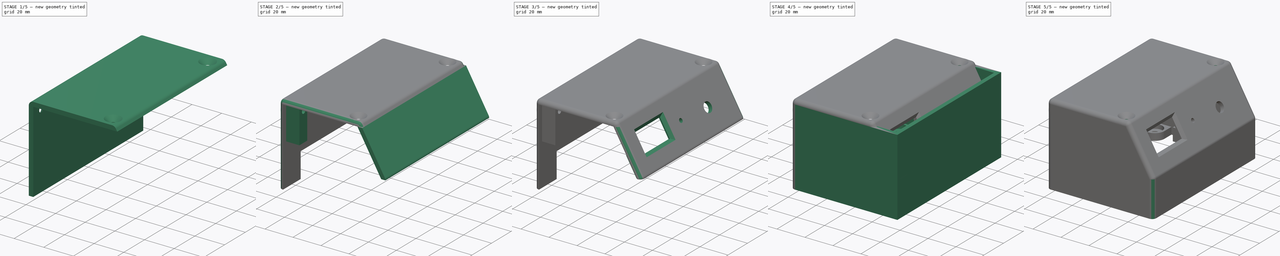
[diagram: build sequence overview — one tinted view per stage of 5, left to right]
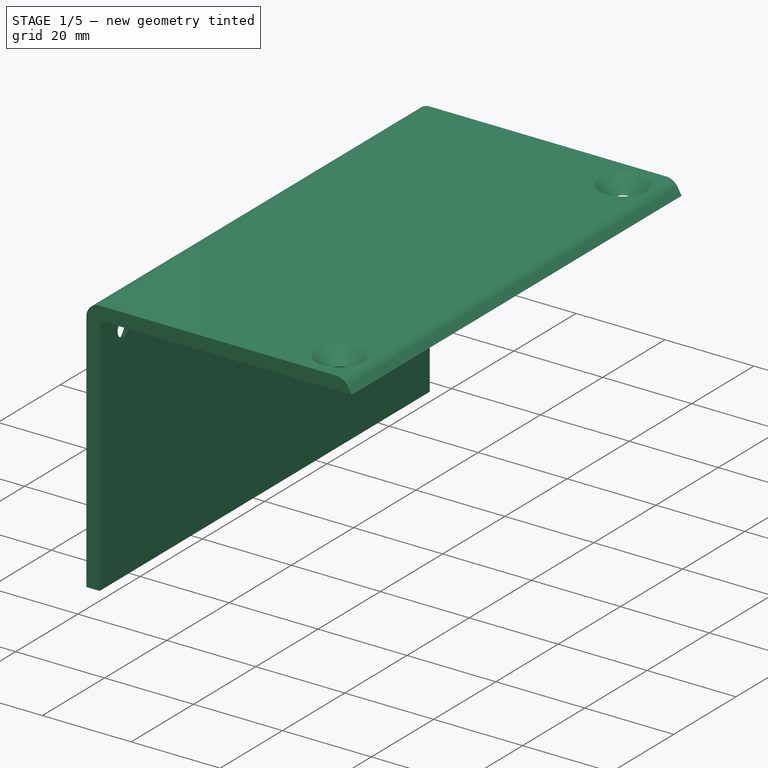
[diagram: stage 1 of 5 — iso view after this stage's code; geometry added in this stage tinted green]
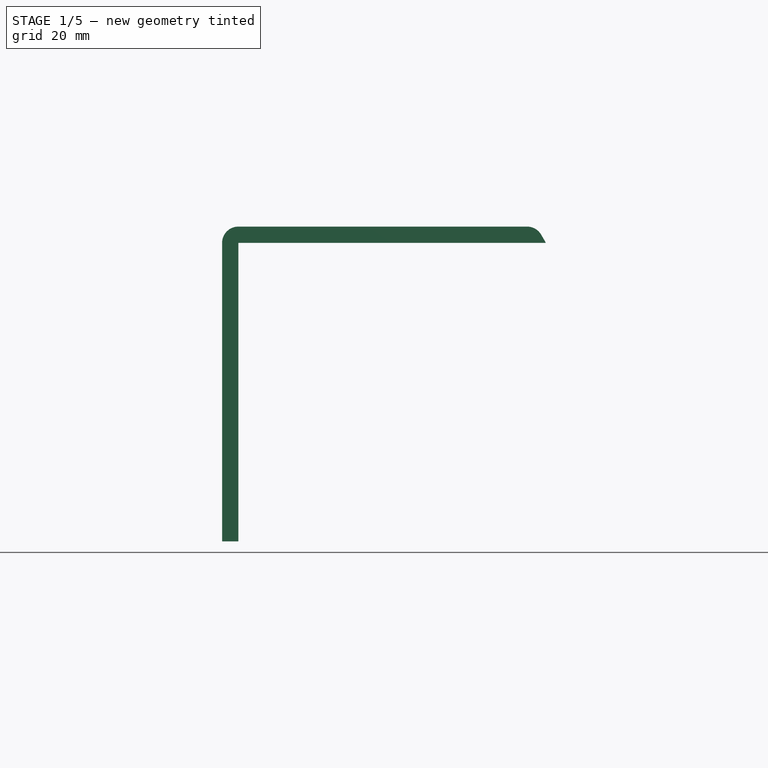
[diagram: stage 1 of 5 — front view after this stage's code; geometry added in this stage tinted green]
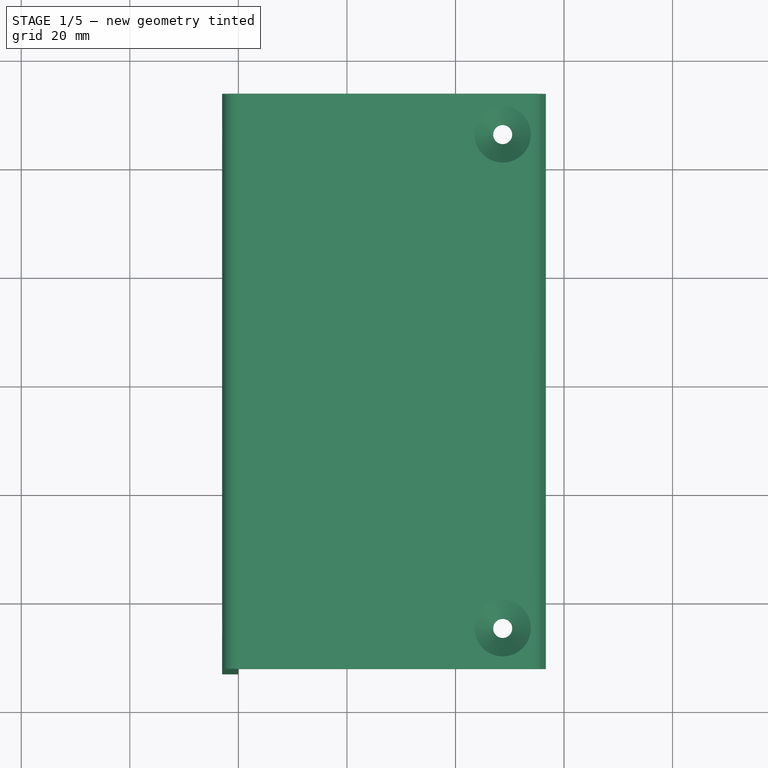
[diagram: stage 1 of 5 — top view after this stage's code; geometry added in this stage tinted green]
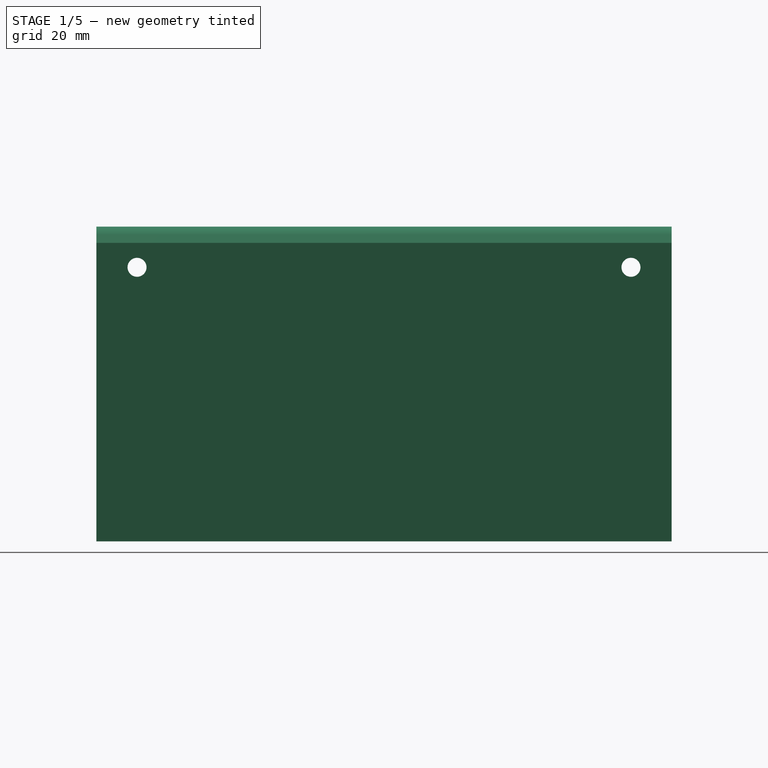
[diagram: stage 1 of 5 — right view after this stage's code; geometry added in this stage tinted green]
FCSTD DOCUMENT  (FreeCAD 0.19R24291 (Git))
Label: PETCTL_09PCB_case_V7
License: All rights reserved
LicenseURL: http://en.wikipedia.org/wiki/All_rights_reserved
objects: Sketcher::SketchObject×19, PartDesign::Pocket×10, PartDesign::Pad×9, PartDesign::Fillet×3, PartDesign::Body×3, App::Part×3, PartDesign::Chamfer×3, Spreadsheet::Sheet×1, Part::Part2DObjectPython×1
note: 73 computed .brp shape members not serialized (recipe doc carries the construction recipe); baked Part::Feature solids carry a one-line shape summary decoded from their .brp

FEATURE [PartDesign::Body] Body001
  Group = -> [Sketch009,Pad004,Sketch010,Pad005,Sketch011,Pocket006,Sketch012,Pad006,Fillet001,Chamfer]
  Origin = -> Origin002
  Tip = -> Chamfer
FEATURE [App::Part] Part001  label="Front"
  Group = -> [Body001]
  Origin = -> Origin003
FEATURE [Sketcher::SketchObject] Sketch013
  FullyConstrained = false
  MapMode = 5
  Placement = pos=(0,0,0) rot=(1,0,0;1.5708rad)
  Support = -> [XZ_Plane005]
  expr: Constraints[11] = Spreadsheet.height
  expr: Constraints[13] = <<Spreadsheet>>.width
  expr: Constraints[26] = <<Spreadsheet>>.wall_thickness
  expr: Constraints[27] = <<Spreadsheet>>.wall_thickness
  expr: Constraints[41] = <<Spreadsheet>>.wall_thickness
  expr: Constraints[30] = <<Spreadsheet>>.wall_thickness
  sketch-geometry (14):
    g0: LineSegment StartX=0 StartY=55 StartZ=0 EndX=53.2 EndY=55 EndZ=0
    g1: LineSegment StartX=73.2 StartY=20.359 StartZ=0 EndX=73.2 EndY=0 EndZ=0
    g2: LineSegment StartX=73.2 StartY=0 StartZ=0 EndX=0 EndY=0 EndZ=0
    g3: LineSegment StartX=0 StartY=0 StartZ=0 EndX=0 EndY=55 EndZ=0
    g4: LineSegment StartX=53.2 StartY=55 StartZ=0 EndX=73.2 EndY=20.359 EndZ=0
    g5: LineSegment StartX=0 StartY=0 StartZ=0 EndX=0 EndY=55 EndZ=0
    g6: LineSegment StartX=0 StartY=55 StartZ=0 EndX=56.6641 EndY=55 EndZ=0
    g7: LineSegment StartX=53.2 StartY=58 StartZ=0 EndX=0 EndY=58 EndZ=0
    g8: LineSegment StartX=-3 StartY=55 StartZ=0 EndX=-3 EndY=0 EndZ=0
    g9: LineSegment StartX=-3 StartY=0 StartZ=0 EndX=0 EndY=0 EndZ=0
    g10: LineSegment StartX=53.8351 StartY=59.9 StartZ=0 EndX=76.4606 EndY=20.7114 EndZ=0
    g11: LineSegment StartX=56.6641 StartY=55 StartZ=0 EndX=55.7981 EndY=56.5 EndZ=0
    g12: ArcOfCircle CenterX=53.2 CenterY=55 CenterZ=0 NormalX=0 NormalY=0 NormalZ=1 AngleXU=0 Radius=3 StartAngle=0.523604 EndAngle=1.5708
    g13: ArcOfCircle CenterX=-2e-16 CenterY=55 CenterZ=0 NormalX=0 NormalY=0 NormalZ=1 AngleXU=0 Radius=3 StartAngle=1.5708 EndAngle=3.14159
  constraints (42):
    c: Coincident(g1,g2)
    c: Coincident(g2,g3)
    c: Coincident(g3,g0)
    c: Horizontal(g0)
    c: Horizontal(g2)
    c: Vertical(g1)
    c: Vertical(g3)
    c: Coincident(g4,g0)
    c: Coincident(g4,g1)
    c: Distance(g4) = 40
    c: Angle(g4,g-1) = 1.0472
    c: Distance(g3) = 55
    c: PointOnObject(g2,g-1)
    c: Distance(g2) = 73.2
    c: PointOnObject(g2,g-2)
    c: Distance(g1) = 20.359
    c: Distance(g0) = 53.2
    c: Coincident(g-1,g5)
    c: Vertical(g5)
    c: Coincident(g5,g6)
    c: Horizontal(g6)
    c: Horizontal(g7)
    c: PointOnObject(g8,g-1)
    c: Vertical(g8)
    c: Coincident(g8,g9)
    c: Coincident(g9,g5)
    c: Distance(g5,g8) = 3
    c: Distance(g5,g7) = 3
    c: PointOnObject(g5,g0)
    c: Parallel(g10,g4)
    c: Distance(g0,g10) = 3
    c: PointOnObject(g6,g10)
    c: Coincident(g11,g6)
    c: PointOnObject(g11,g10)
    c: Coincident(g12,g11)
    c: Coincident(g12,g7)
    c: Tangent(g12,g7)
    c: Radius(g12) = 3
    c: Tangent(g12,g11)
    c: Tangent(g7,g13) = -1.5708
    c: Tangent(g8,g13) = -1.5708
    c: Radius(g13) = 3
FEATURE [PartDesign::Pad] Pad007
  Direction = (1,1,1)
  Length = 106
  Length2 = 100
  Midplane = true
  Placement = pos=(0,0,0) rot=(1,0,0;1.5708rad)
  Profile = -> Sketch013
  Type = 0
  expr: Length = Spreadsheet.length
FEATURE [Sketcher::SketchObject] Sketch014
  AttachmentOffset = pos=(0,0,55) rot=(0,0,1;0rad)
  FullyConstrained = true
  MapMode = 5
  Placement = pos=(0,0,55) rot=(0,0,1;0rad)
  Support = -> [XY_Plane005]
  expr: .AttachmentOffset.Base.z = Spreadsheet.height
  sketch-geometry (2):
    g0: Circle CenterX=48.7 CenterY=45.5 CenterZ=0 NormalX=0 NormalY=0 NormalZ=1 AngleXU=0 Radius=1.75
    g1: Circle CenterX=48.7 CenterY=-45.5 CenterZ=0 NormalX=0 NormalY=0 NormalZ=1 AngleXU=0 Radius=1.75
  constraints (5):
    c: Symmetric(g0,g1,g-1)
    c: Equal(g0,g1)
    c: Diameter(g0) = 3.5
    c: DistanceY(g-1,g0) = 45.5
    c: DistanceX(g-2,g0) = 48.7
FEATURE [PartDesign::Pocket] Pocket007
  BaseFeature = -> Pad007
  Length = 5
  Length2 = 100
  Midplane = true
  Placement = pos=(0,0,0) rot=(1,0,0;1.5708rad)
  Profile = -> Sketch014
  Reversed = true
  Type = 1
FEATURE [Sketcher::SketchObject] Sketch015
  FullyConstrained = true
  MapMode = 5
  Placement = pos=(0,0,0) rot=(0.57735,0.57735,0.57735;2.0944rad)
  Support = -> [YZ_Plane005]
  sketch-geometry (2):
    g0: Circle CenterX=45.5 CenterY=50.5 CenterZ=0 NormalX=0 NormalY=0 NormalZ=1 AngleXU=0 Radius=1.75
    g1: Circle CenterX=-45.5 CenterY=50.5 CenterZ=0 NormalX=0 NormalY=0 NormalZ=1 AngleXU=0 Radius=1.75
  constraints (5):
    c: Equal(g1,g0)
    c: Symmetric(g1,g0,g-2)
    c: Diameter(g1) = 3.5
    c: DistanceX(g-2,g0) = 45.5
    c: DistanceY(g-1,g0) = 50.5
FEATURE [PartDesign::Pocket] Pocket008
  BaseFeature = -> Pocket007
  Length = 5
  Length2 = 100
  Placement = pos=(0,0,0) rot=(1,0,0;1.5708rad)
  Profile = -> Sketch015
  Type = 1
FEATURE [PartDesign::Chamfer] Chamfer001
  Angle = 45
  Base = -> Pocket008 [Edge33,Edge34]
  BaseFeature = -> Pocket008
  ChamferType = 1
  FlipDirection = false
  Placement = pos=(0,0,0) rot=(1,0,0;1.5708rad)
  Size = 3.45
  Size2 = 2.99
  SupportTransform = false
  expr: Size = 6.9 / 2
FEATURE [PartDesign::Chamfer] Chamfer002
  Angle = 45
  Base = -> Chamfer001 [Edge50,Edge51]
  BaseFeature = -> Chamfer001
  ChamferType = 1
  FlipDirection = false
  Placement = pos=(0,0,0) rot=(1,0,0;1.5708rad)
  Size = 3.45
  Size2 = 2.99
  SupportTransform = false
  expr: Size = 6.9 / 2
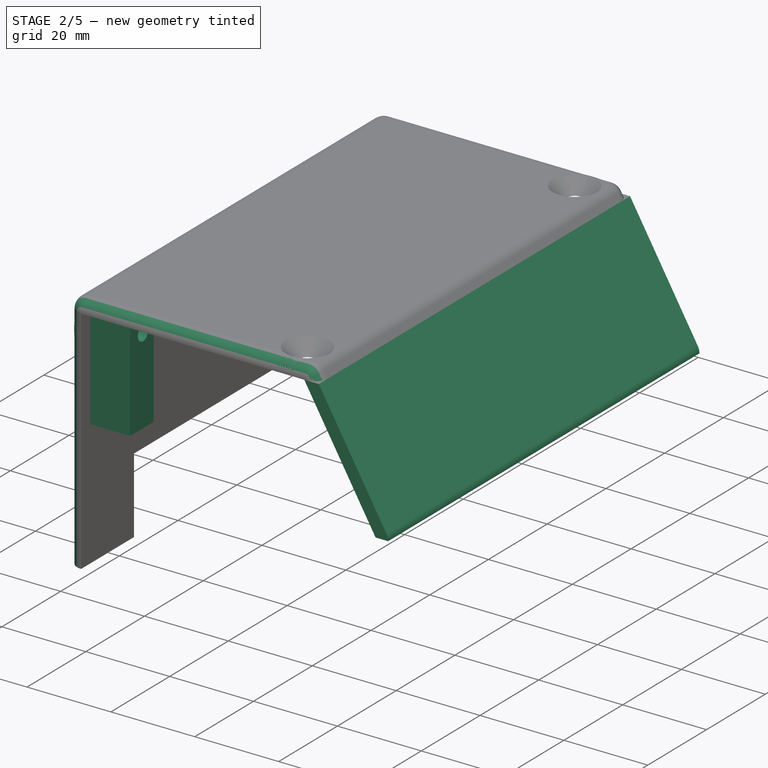
[diagram: stage 2 of 5 — iso view after this stage's code; geometry added in this stage tinted green]
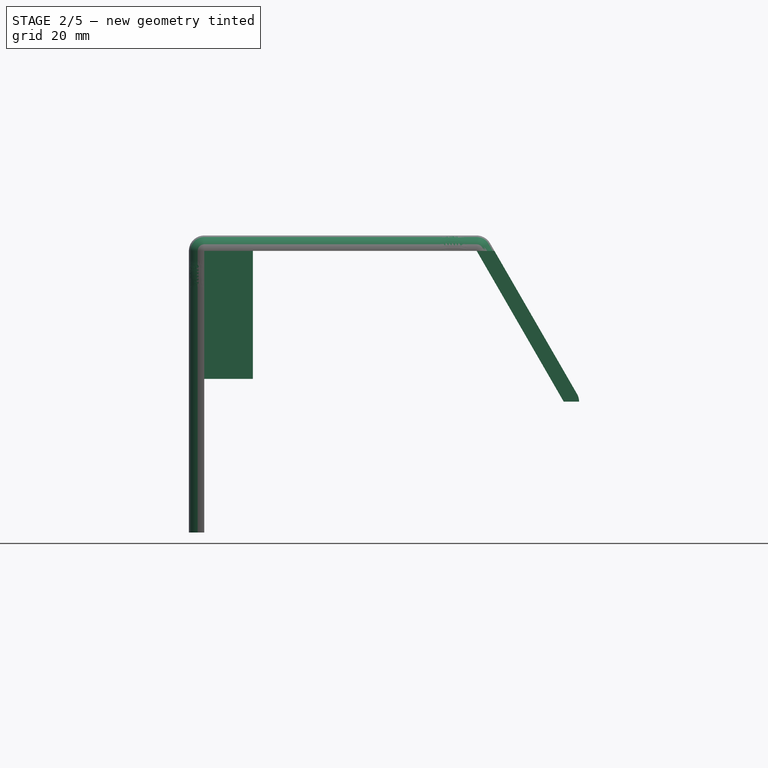
[diagram: stage 2 of 5 — front view after this stage's code; geometry added in this stage tinted green]
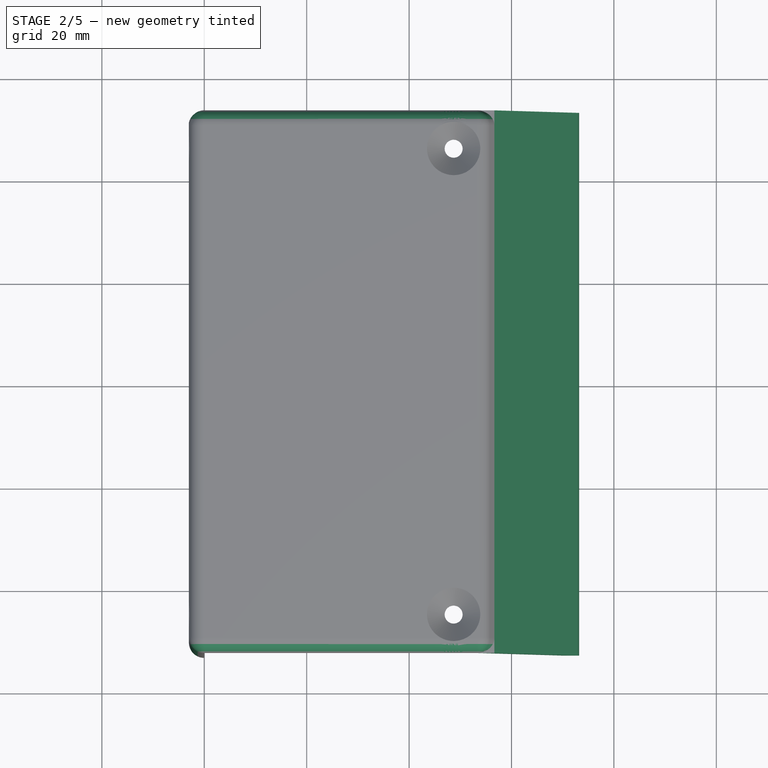
[diagram: stage 2 of 5 — top view after this stage's code; geometry added in this stage tinted green]
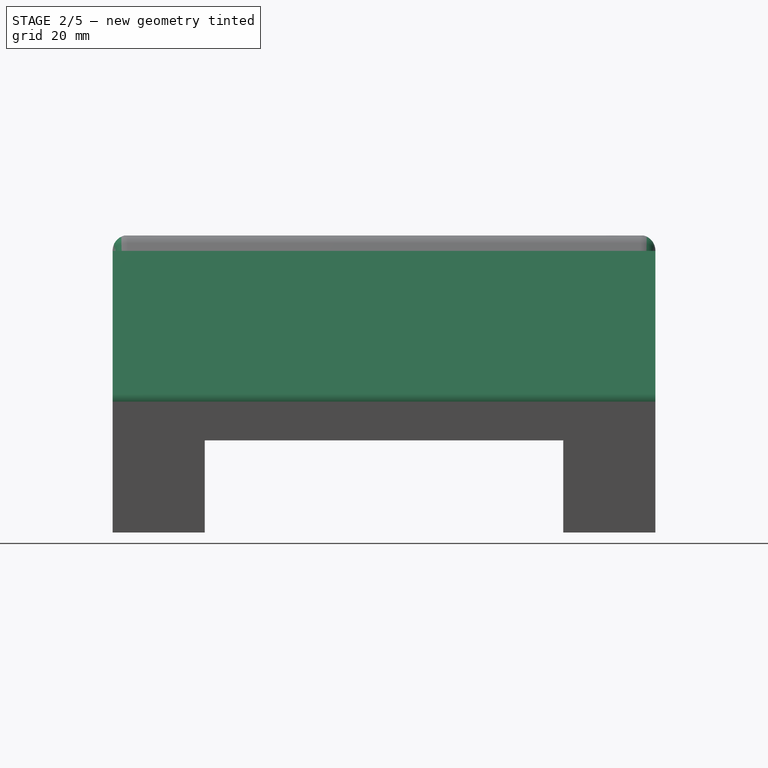
[diagram: stage 2 of 5 — right view after this stage's code; geometry added in this stage tinted green]
FEATURE [Sketcher::SketchObject] Sketch009
  FullyConstrained = false
  MapMode = 5
  Placement = pos=(0,0,0) rot=(1,0,0;1.5708rad)
  Support = -> [XZ_Plane002]
  expr: Constraints[2] = Spreadsheet.height
  expr: Constraints[4] = <<Spreadsheet>>.width
  expr: Constraints[9] = Spreadsheet.wall_thickness
  expr: Constraints[12] = Spreadsheet.wall_thickness
  sketch-geometry (8):
    g0: LineSegment StartX=53.2 StartY=55 StartZ=0 EndX=73.2 EndY=20.359 EndZ=0
    g1: LineSegment StartX=-3.60255 StartY=55 StartZ=0 EndX=91.3407 EndY=55 EndZ=0
    g2: LineSegment StartX=56.6641 StartY=55 StartZ=0 EndX=72.7981 EndY=27.0551 EndZ=0
    g3: LineSegment StartX=53.2 StartY=55 StartZ=0 EndX=56.6641 EndY=55 EndZ=0
    g4: LineSegment StartX=70.2 StartY=48.4773 StartZ=0 EndX=70.2 EndY=24.7563 EndZ=0
    g5: ArcOfCircle CenterX=70.2 CenterY=25.5551 CenterZ=0 NormalX=0 NormalY=0 NormalZ=1 AngleXU=0 Radius=3 StartAngle=0 EndAngle=0.523599
    g6: LineSegment StartX=53.2 StartY=55 StartZ=0 EndX=70.2 EndY=25.5551 EndZ=0
    g7: LineSegment StartX=70.2 StartY=25.5551 StartZ=0 EndX=73.2 EndY=25.5551 EndZ=0
  constraints (21):
    c: Distance(g0) = 40
    c: Horizontal(g1)
    c: DistanceY(g-1,g1) = 55
    c: PointOnObject(g0,g1)
    c: DistanceX(g-2,g0) = 73.2
    c: PointOnObject(g2,g1)
    c: Coincident(g3,g0)
    c: Coincident(g3,g2)
    c: Parallel(g0,g2)
    c: Distance(g2,g0) = 3
    c: Vertical(g4)
    c: Tangent(g2,g5) = 1.5708
    c: Radius(g5) = 3
    c: Distance(g0,g4) = 3
    c: Distance(g5,g0) = 6
    c: Angle(g0,g-1) = 1.0472
    c: Coincident(g6,g3)
    c: Coincident(g6,g5)
    c: Coincident(g7,g5)
    c: Coincident(g7,g5)
    c: Horizontal(g7)
FEATURE [PartDesign::Pad] Pad004
  Direction = (1,1,1)
  Length = 106
  Length2 = 100
  Midplane = true
  Placement = pos=(0,0,0) rot=(1,0,0;1.5708rad)
  Profile = -> Sketch009
  Type = 0
  expr: Length = Spreadsheet.length
FEATURE [PartDesign::Fillet] Fillet002
  Base = -> Chamfer002 [Edge13,Edge10]
  BaseFeature = -> Chamfer002
  Placement = pos=(0,0,0) rot=(1,0,0;1.5708rad)
  Radius = 2.99
  SupportTransform = false
FEATURE [Sketcher::SketchObject] Sketch016
  FullyConstrained = true
  MapMode = 5
  Placement = pos=(0,0,0) rot=(0.57735,0.57735,0.57735;2.0944rad)
  Support = -> [YZ_Plane005]
  sketch-geometry (4):
    g0: LineSegment StartX=-35 StartY=0 StartZ=0 EndX=35 EndY=0 EndZ=0
    g1: LineSegment StartX=35 StartY=0 StartZ=0 EndX=35 EndY=18 EndZ=0
    g2: LineSegment StartX=35 StartY=18 StartZ=0 EndX=-35 EndY=18 EndZ=0
    g3: LineSegment StartX=-35 StartY=18 StartZ=0 EndX=-35 EndY=0 EndZ=0
  constraints (11):
    c: Coincident(g0,g1)
    c: Coincident(g1,g2)
    c: Coincident(g2,g3)
    c: Coincident(g3,g0)
    c: Horizontal(g0)
    c: Vertical(g1)
    c: Vertical(g3)
    c: PointOnObject(g0,g-1)
    c: Symmetric(g2,g1,g-2)
    c: DistanceY(g-1,g1) = 18
    c: Distance(g2) = 70
FEATURE [PartDesign::Pocket] Pocket009
  BaseFeature = -> Fillet002
  Length = 5
  Length2 = 100
  Placement = pos=(0,0,0) rot=(1,0,0;1.5708rad)
  Profile = -> Sketch016
  Type = 1
FEATURE [Sketcher::SketchObject] Sketch017
  FullyConstrained = true
  MapMode = 5
  Placement = pos=(0,0,0) rot=(0.57735,0.57735,0.57735;2.0944rad)
  Support = -> [YZ_Plane005]
  expr: Constraints[20] = Spreadsheet.height
  expr: Constraints[17] = Spreadsheet.PCB_length - 0.3
  sketch-geometry (10):
    g0: LineSegment StartX=-49.85 StartY=30 StartZ=0 EndX=-41.85 EndY=30 EndZ=0
    g1: LineSegment StartX=-41.85 StartY=30 StartZ=0 EndX=-41.85 EndY=55 EndZ=0
    g2: LineSegment StartX=-41.85 StartY=55 StartZ=0 EndX=-49.85 EndY=55 EndZ=0
    g3: LineSegment StartX=-49.85 StartY=55 StartZ=0 EndX=-49.85 EndY=30 EndZ=0
    g4: LineSegment StartX=41.85 StartY=30 StartZ=0 EndX=49.85 EndY=30 EndZ=0
    g5: LineSegment StartX=49.85 StartY=30 StartZ=0 EndX=49.85 EndY=55 EndZ=0
    g6: LineSegment StartX=49.85 StartY=55 StartZ=0 EndX=41.85 EndY=55 EndZ=0
    g7: LineSegment StartX=41.85 StartY=55 StartZ=0 EndX=41.85 EndY=30 EndZ=0
    g8: Circle CenterX=-45.5 CenterY=50.5 CenterZ=0 NormalX=0 NormalY=0 NormalZ=1 AngleXU=0 Radius=1.75
    g9: Circle CenterX=45.5 CenterY=50.5 CenterZ=0 NormalX=0 NormalY=0 NormalZ=1 AngleXU=0 Radius=1.75
  constraints (27):
    c: Coincident(g0,g1)
    c: Coincident(g1,g2)
    c: Coincident(g2,g3)
    c: Coincident(g3,g0)
    c: Horizontal(g0)
    c: Horizontal(g2)
    c: Vertical(g1)
    c: Vertical(g3)
    c: Coincident(g4,g5)
    c: Coincident(g5,g6)
    c: Coincident(g6,g7)
    c: Coincident(g7,g4)
    c: Horizontal(g4)
    c: Horizontal(g6)
    c: Vertical(g7)
    c: Symmetric(g5,g2,g-2)
    c: Equal(g2,g6)
    c: Distance(g2,g5) = 99.7
    c: Distance(g0,g3) = 8
    c: Symmetric(g4,g0,g-2)
    c: DistanceY(g-1,g1) = 55
    c: Distance(g1) = 25
    c: Equal(g9,g8)
    c: Symmetric(g8,g9,g-2)
    c: Diameter(g9) = 3.5
    c: DistanceY(g-1,g8) = 50.5
    c: DistanceX(g-2,g9) = 45.5
FEATURE [PartDesign::Pad] Pad008  label="TopBack001"
  BaseFeature = -> Pocket009
  Direction = (1,1,1)
  Length = 9.5
  Length2 = 100
  Placement = pos=(0,0,0) rot=(1,0,0;1.5708rad)
  Profile = -> Sketch017
  Type = 0
FEATURE [Sketcher::SketchObject] Sketch018
  AttachmentOffset = pos=(20,50,55) rot=(0,0,1;-1.5708rad)
  FullyConstrained = false
  MapMode = 5
  Placement = pos=(20,50,55) rot=(0,0,1;4.71239rad)
  Support = -> [XY_Plane005]
  expr: .AttachmentOffset.Base.z = Spreadsheet.height
  sketch-geometry (75):
    g0: GeomPoint X=0 Y=0 Z=0
    g1: ArcOfCircle CenterX=8.2048 CenterY=13.1466 CenterZ=0 NormalX=0 NormalY=0 NormalZ=1 AngleXU=0 Radius=8.06343 StartAngle=4.57072 EndAngle=7.71396
    g2: ArcOfCircle CenterX=8.2048 CenterY=13.1466 CenterZ=0 NormalX=0 NormalY=0 NormalZ=1 AngleXU=0 Radius=2.94935 StartAngle=5.00314 EndAngle=7.62012
    g3-g8: Circle x6 (B-spline internal-alignment scaffolding for g9; pole/knot coordinates omitted)
    g9: BSplineCurve PolesCount=6 KnotsCount=4 Degree=3 IsPeriodic=0
    g10-g13: GeomPoint x4 (B-spline internal-alignment scaffolding for g9; pole/knot coordinates omitted)
    g14: LineSegment StartX=9.3302 StartY=21.1311 StartZ=0 EndX=5.60816 EndY=21.1311 EndZ=0
    g15: LineSegment StartX=5.60816 StartY=21.1311 StartZ=0 EndX=0.205283 EndY=16.0811 EndZ=0
    g16: LineSegment StartX=0.205283 StartY=16.0811 StartZ=0 EndX=0.205283 EndY=0 EndZ=0
    g17: LineSegment StartX=0.205283 StartY=0 StartZ=0 EndX=5.80959 EndY=0 EndZ=0
    g18: LineSegment StartX=5.80959 StartY=0 StartZ=0 EndX=5.80959 EndY=16.0157 EndZ=0
    g19: LineSegment StartX=5.80959 StartY=16.0157 StartZ=0 EndX=8.88828 EndY=16.0157 EndZ=0
    g20: LineSegment StartX=9.05029 StartY=10.3211 StartZ=0 EndX=7.06632 EndY=10.3211 EndZ=0
    g21: LineSegment StartX=7.06632 StartY=10.3211 StartZ=0 EndX=7.06632 EndY=5.16398 EndZ=0
    g22: LineSegment StartX=38.9504 StartY=21.1242 StartZ=0 EndX=24.6208 EndY=21.1242 EndZ=0
    g23: LineSegment StartX=24.6208 StartY=21.1242 StartZ=0 EndX=19.2179 EndY=16.0742 EndZ=0
    g24: LineSegment StartX=19.2179 StartY=16.0742 StartZ=0 EndX=19.2179 EndY=0 EndZ=0
    g25: LineSegment StartX=19.2179 StartY=0 StartZ=0 EndX=33.5071 EndY=0 EndZ=0
    g26: LineSegment StartX=33.5071 StartY=0 StartZ=0 EndX=33.5071 EndY=5.05 EndZ=0
    g27: LineSegment StartX=33.5071 StartY=5.05 StartZ=0 EndX=24.5376 EndY=5.05 EndZ=0
    g28: LineSegment StartX=24.5376 StartY=5.05 StartZ=0 EndX=24.5376 EndY=7.97826 EndZ=0
    g29: LineSegment StartX=24.5376 StartY=7.97826 StartZ=0 EndX=33.5071 EndY=7.97826 EndZ=0
    g30: LineSegment StartX=33.5071 StartY=7.97826 StartZ=0 EndX=33.5071 EndY=13.0283 EndZ=0
    g31: LineSegment StartX=33.5071 StartY=13.0283 StartZ=0 EndX=24.5376 EndY=13.0283 EndZ=0
    g32: LineSegment StartX=24.5376 StartY=13.0283 StartZ=0 EndX=24.5376 EndY=16.0742 EndZ=0
    g33: LineSegment StartX=24.5376 StartY=16.0742 StartZ=0 EndX=33.5475 EndY=16.0742 EndZ=0
    g34: LineSegment StartX=33.5475 StartY=16.0742 StartZ=0 EndX=38.9504 EndY=21.1242 EndZ=0
    g35: LineSegment StartX=37.2845 StartY=16.2327 StartZ=0 EndX=42.9356 EndY=16.2327 EndZ=0
    g36: LineSegment StartX=42.9356 StartY=16.2327 StartZ=0 EndX=42.9356 EndY=0 EndZ=0
    g37: LineSegment StartX=42.9356 StartY=0 StartZ=0 EndX=48.4163 EndY=0 EndZ=0
    g38: LineSegment StartX=48.4163 StartY=0 StartZ=0 EndX=48.4163 EndY=16.2327 EndZ=0
    g39: LineSegment StartX=48.4163 StartY=16.2327 StartZ=0 EndX=49.7514 EndY=16.2327 EndZ=0
    g40: LineSegment StartX=42.6874 StartY=21.2827 StartZ=0 EndX=55.1543 EndY=21.2827 EndZ=0
    g41: LineSegment StartX=42.6874 StartY=21.2827 StartZ=0 EndX=37.2845 EndY=16.2327 EndZ=0
    g42: LineSegment StartX=49.7514 StartY=16.2327 StartZ=0 EndX=55.1543 EndY=21.2827 EndZ=0
    g43: LineSegment StartX=72.7068 StartY=21.016 StartZ=0 EndX=65.6586 EndY=21.016 EndZ=0
    g44: LineSegment StartX=67.3635 StartY=5.13073 StartZ=0 EndX=67.3635 EndY=0 EndZ=0
    g45: LineSegment StartX=67.3635 StartY=0 StartZ=0 EndX=64.1185 EndY=0 EndZ=0
    g46-g52: Circle x7 (B-spline internal-alignment scaffolding for g53; pole/knot coordinates omitted)
    g53: BSplineCurve PolesCount=7 KnotsCount=5 Degree=3 IsPeriodic=0
    g54-g57: GeomPoint x4 (B-spline internal-alignment scaffolding for g53; pole/knot coordinates omitted)
    g58: GeomPoint X=64.4078 Y=0 Z=0
    g59: LineSegment StartX=67.3039 StartY=15.966 StartZ=0 EndX=72.7068 EndY=21.016 EndZ=0
    g60: LineSegment StartX=76.5743 StartY=21.0711 StartZ=0 EndX=71.1714 EndY=16.0211 EndZ=0
    g61: LineSegment StartX=71.1714 StartY=16.0211 StartZ=0 EndX=76.8224 EndY=16.0211 EndZ=0
    g62: LineSegment StartX=76.8224 StartY=16.0211 StartZ=0 EndX=76.8224 EndY=0 EndZ=0
    g63: LineSegment StartX=76.8224 StartY=0 StartZ=0 EndX=82.3031 EndY=0 EndZ=0
    g64: LineSegment StartX=82.3031 StartY=0 StartZ=0 EndX=82.3031 EndY=16.0211 EndZ=0
    g65: LineSegment StartX=82.3031 StartY=16.0211 StartZ=0 EndX=83.6382 EndY=16.0211 EndZ=0
    g66: LineSegment StartX=83.6382 StartY=16.0211 StartZ=0 EndX=89.0411 EndY=21.0711 EndZ=0
    g67: LineSegment StartX=89.0411 StartY=21.0711 StartZ=0 EndX=76.5743 EndY=21.0711 EndZ=0
    g68: LineSegment StartX=88.2474 StartY=16.0264 StartZ=0 EndX=93.6502 EndY=21.0764 EndZ=0
    g69: LineSegment StartX=93.6502 StartY=21.0764 StartZ=0 EndX=93.6823 EndY=5.09016 EndZ=0
    g70: LineSegment StartX=93.6823 StartY=5.09016 StartZ=0 EndX=100.043 EndY=5.09016 EndZ=0
    g71: LineSegment StartX=100.043 StartY=5.09016 StartZ=0 EndX=100.043 EndY=0 EndZ=0
    g72: LineSegment StartX=100.043 StartY=0 StartZ=0 EndX=88.2474 EndY=0 EndZ=0
    g73: LineSegment StartX=88.2474 StartY=0 StartZ=0 EndX=88.2474 EndY=16.0264 EndZ=0
    g74: LineSegment StartX=33.5475 StartY=16.0742 StartZ=0 EndX=33.5475 EndY=21.1242 EndZ=0
  constraints (130):
    c: Coincident(g0,g-1)
    c: Weight(g3) = 1
    c: Equal(g3, g4-g8) x5
    c: InternalAlignment(g3-g8 -> g9) x6
    c: InternalAlignment(g10-g13 -> g9) x4
    c: Coincident(g14,g1)
    c: Horizontal(g14)
    c: Coincident(g15,g14)
    c: Coincident(g16,g15)
    c: Vertical(g16)
    c: Coincident(g17,g16)
    c: PointOnObject(g17,g-1)
    c: Horizontal(g17)
    c: Coincident(g18,g17)
    c: Vertical(g18)
    c: Coincident(g19,g18)
    c: Horizontal(g19)
    c: Coincident(g2,g19)
    c: Coincident(g20,g2)
    c: Horizontal(g20)
    c: Coincident(g21,g20)
    c: Coincident(g21,g1)
    c: Vertical(g21)
    c: Coincident(g2,g1)
    c: Horizontal(g22)
    c: Coincident(g23,g22)
    c: Coincident(g24,g23)
    c: Vertical(g24)
    c: Coincident(g25,g24)
    c: PointOnObject(g25,g-1)
    c: Horizontal(g25)
    c: Coincident(g26,g25)
    c: Vertical(g26)
    c: Coincident(g27,g26)
    c: Horizontal(g27)
    c: Coincident(g28,g27)
    c: Vertical(g28)
    c: Coincident(g29,g28)
    c: Horizontal(g29)
    c: Coincident(g30,g29)
    c: Vertical(g30)
    c: Coincident(g31,g30)
    c: Horizontal(g31)
    c: Coincident(g32,g31)
    c: Vertical(g32)
    c: Coincident(g33,g32)
    c: Horizontal(g33)
    c: Coincident(g34,g33)
    c: Coincident(g34,g22)
    c: Horizontal(g35)
    c: Coincident(g36,g35)
    c: Vertical(g36)
    c: Coincident(g37,g36)
    c: PointOnObject(g37,g-1)
    c: Horizontal(g37)
    c: Coincident(g38,g37)
    c: Vertical(g38)
    c: Coincident(g39,g38)
    c: Horizontal(g39)
    c: Horizontal(g40)
    c: Coincident(g41,g40)
    c: Coincident(g41,g35)
    c: Coincident(g42,g39)
    c: Coincident(g42,g40)
    c: Horizontal(g43)
    c: Vertical(g44)
    c: Coincident(g45,g44)
    c: PointOnObject(g45,g-1)
    c: Horizontal(g45)
    c: Coincident(g53,g43)
    c: Weight(g46) = 1
    c: Equal(g46, g47-g52) x6
    c: Coincident(g53,g45)
    c: InternalAlignment(g46-g52 -> g53) x7
    c: InternalAlignment(g54-g57 -> g53) x4
    c: Horizontal(g61)
    c: Coincident(g62,g61)
    c: PointOnObject(g62,g-1)
    c: Vertical(g62)
    c: Coincident(g63,g62)
    c: PointOnObject(g63,g-1)
    c: Coincident(g64,g63)
    c: Vertical(g64)
    c: Coincident(g65,g64)
    c: Horizontal(g65)
    c: Coincident(g66,g65)
    c: Coincident(g67,g66)
    c: Coincident(g67,g60)
    c: Horizontal(g67)
    c: Coincident(g69,g68)
    c: Coincident(g70,g69)
    c: Horizontal(g70)
    c: Coincident(g71,g70)
    c: PointOnObject(g71,g-1)
    c: Vertical(g71)
    c: Coincident(g72,g71)
    c: PointOnObject(g72,g-1)
    c: Coincident(g73,g72)
    c: Coincident(g73,g68)
    c: Vertical(g73)
    c: Coincident(g59,g9)
    c: Coincident(g60,g61)
    c: Coincident(g43,g59)
    c: Coincident(g44,g9)
    c: Parallel(g59,g60)
    c: Parallel(g68,g66)
    c: Parallel(g42,g59)
    c: Parallel(g41,g42)
    c: Parallel(g34,g41)
    c: Parallel(g23,g34)
    c: Parallel(g23,g15)
    c: Equal(g37,g63)
    c: Equal(g40,g67)
    c: Equal(g65,g39)
    c: Equal(g61,g35)
    c: Equal(g34,g41)
    c: Equal(g41,g42)
    c: Equal(g42,g59)
    c: Equal(g59,g60)
    c: Equal(g60,g66)
    c: Equal(g66,g68)
    c: Equal(g68,g23)
    c: Equal(g23,g15)
    c: Equal(g26,g30)
    c: Equal(g29,g31)
    c: Equal(g31,g27)
    c: Coincident(g74,g33)
    c: PointOnObject(g74,g22)
    c: Vertical(g74)
    c: Equal(g74,g30)
FEATURE [Part::Part2DObjectPython] Clone2D  label="Sketch018 (2D)"  # Draft 2D object (typed FeaturePython)
  Fuse = false
  Objects = -> [Sketch018]
  Placement = pos=(37,-40,55) rot=(0,0,1;1.5708rad)
  Scale = (0.8,0.8,0.8)
  expr: .Placement.Base.z = Spreadsheet.height
FEATURE [PartDesign::Pocket] Pocket010
  BaseFeature = -> Pad008
  Length = 1.5
  Length2 = 100
  Placement = pos=(0,0,0) rot=(1,0,0;1.5708rad)
  Profile = -> Clone2D
  Reversed = true
  Type = 0
FEATURE [PartDesign::Body] Body002
  Group = -> [Sketch013,Pad007,Sketch014,Pocket007,Sketch015,Pocket008,Chamfer001,Chamfer002,Fillet002,Sketch016,Pocket009,Sketch017,Pad008,Sketch018,Clone2D,Pocket010]
  Origin = -> Origin005
  Tip = -> Pocket010
FEATURE [App::Part] Part002  label="TopBack"
  Group = -> [Body002]
  Origin = -> Origin004
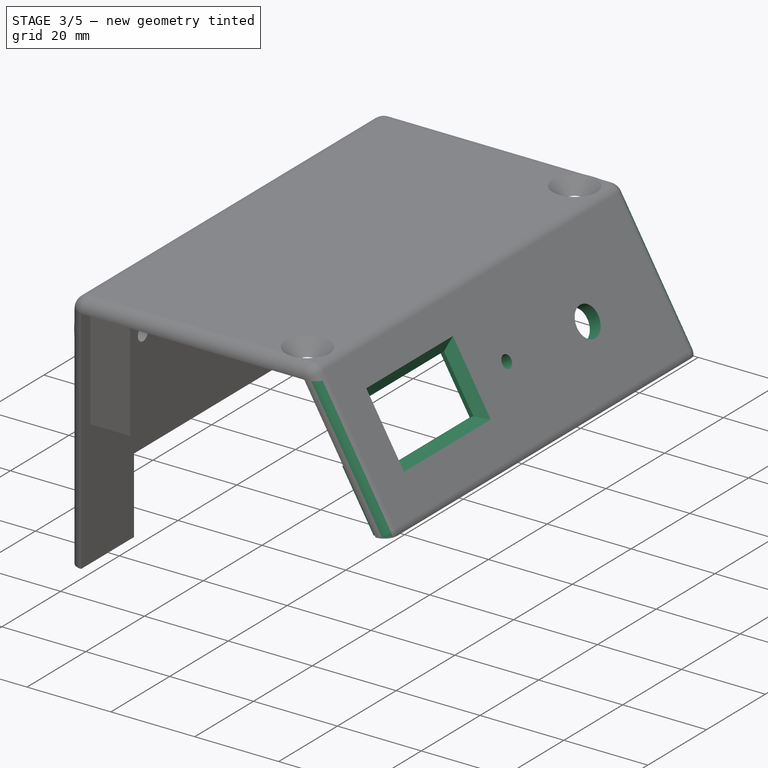
[diagram: stage 3 of 5 — iso view after this stage's code; geometry added in this stage tinted green]
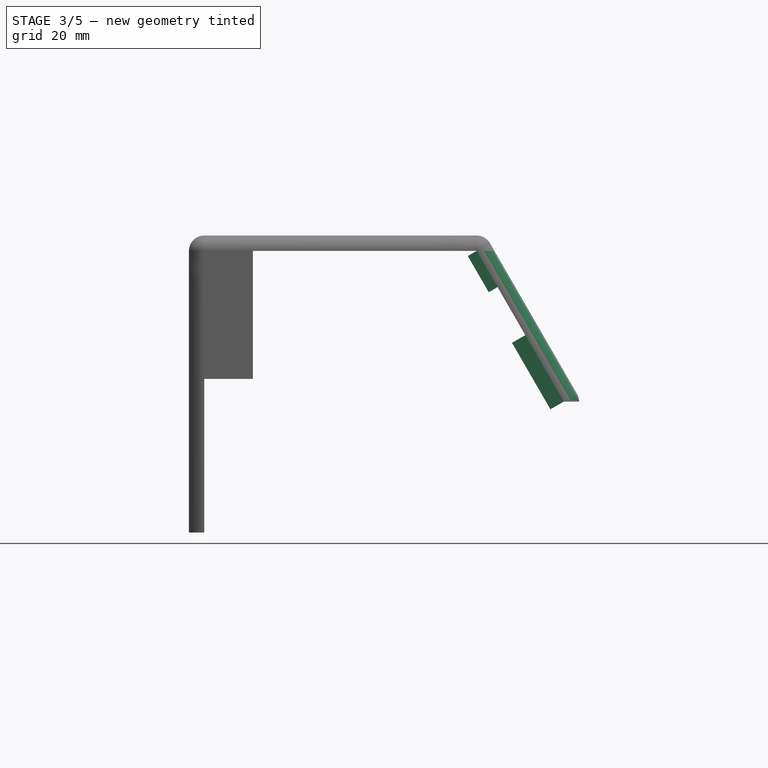
[diagram: stage 3 of 5 — front view after this stage's code; geometry added in this stage tinted green]
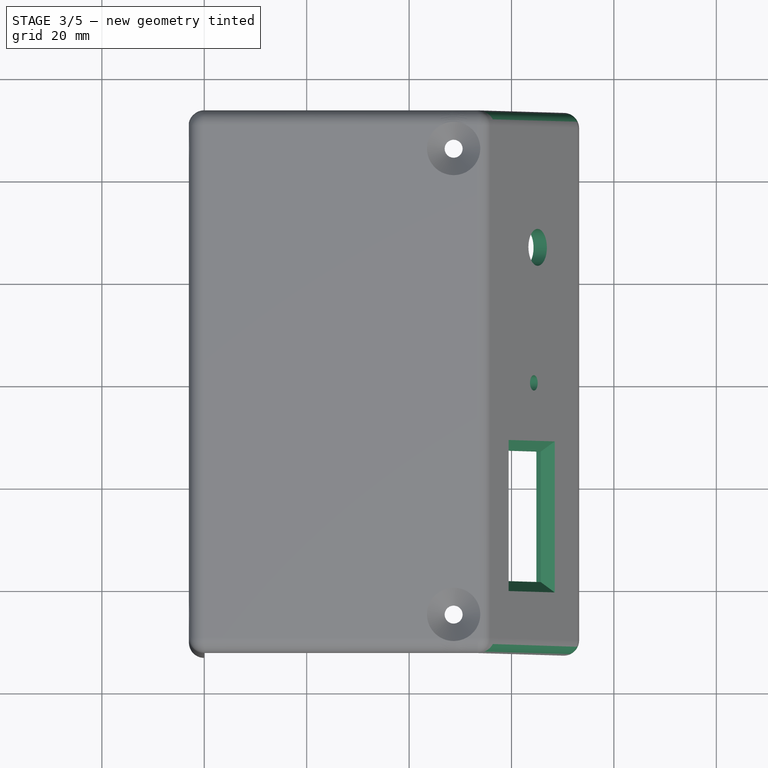
[diagram: stage 3 of 5 — top view after this stage's code; geometry added in this stage tinted green]
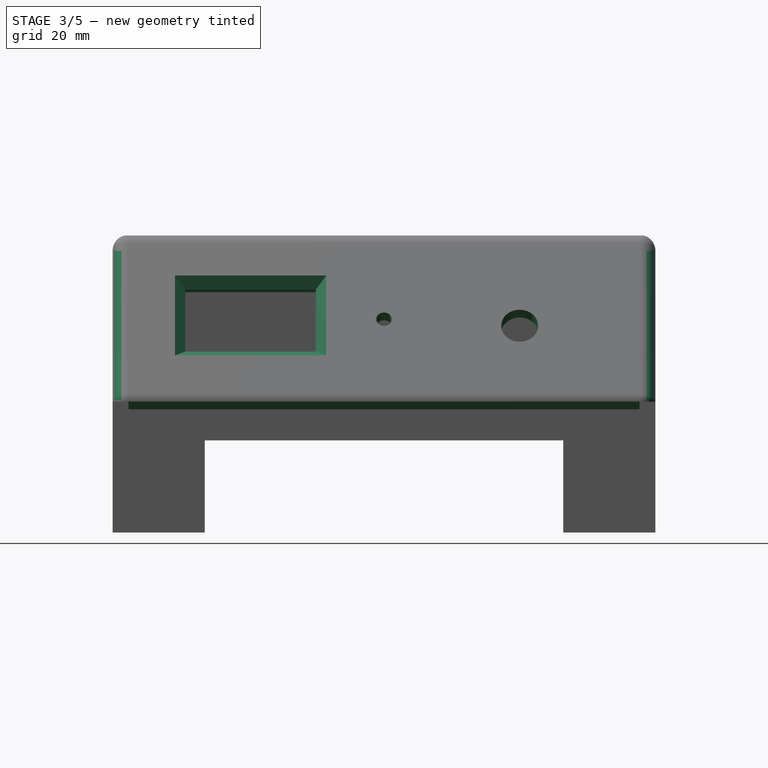
[diagram: stage 3 of 5 — right view after this stage's code; geometry added in this stage tinted green]
FEATURE [PartDesign::Body] Body
  Group = -> [Sketch,Pad,Sketch001,Pocket,Sketch002,Pocket001,Sketch004,Pocket003,Sketch005,Pad001,Sketch006,Pad002,Sketch003,Pocket004,Sketch007,Pad003,Sketch008,Pocket005,Fillet]
  Origin = -> Origin001
  Tip = -> Fillet
FEATURE [App::Part] Part  label="Base"
  Group = -> [Body]
  Origin = -> Origin
FEATURE [Sketcher::SketchObject] Sketch010
  FullyConstrained = false
  MapMode = 5
  Placement = pos=(63.7157,-8e-15,36.7863) rot=(0.866025,0,-0.5;3.14159rad)
  sketch-geometry (8):
    g0: LineSegment StartX=-2.0314 StartY=49.9 StartZ=0 EndX=12.9686 EndY=49.9 EndZ=0
    g1: LineSegment StartX=12.9686 StartY=49.9 StartZ=0 EndX=12.9686 EndY=-49.9 EndZ=0
    g2: LineSegment StartX=12.9686 StartY=-49.9 StartZ=0 EndX=-2.0314 EndY=-49.9 EndZ=0
    g3: LineSegment StartX=-2.0314 StartY=-49.9 StartZ=0 EndX=-2.0314 EndY=-47.9 EndZ=0
    g4: LineSegment StartX=-2.0314 StartY=-47.9 StartZ=0 EndX=10.9686 EndY=-47.9 EndZ=0
    g5: LineSegment StartX=10.9686 StartY=-47.9 StartZ=0 EndX=10.9686 EndY=47.9 EndZ=0
    g6: LineSegment StartX=10.9686 StartY=47.9 StartZ=0 EndX=-2.0314 EndY=47.9 EndZ=0
    g7: LineSegment StartX=-2.0314 StartY=47.9 StartZ=0 EndX=-2.0314 EndY=49.9 EndZ=0
  constraints (20):
    c: Coincident(g1,g0)
    c: Vertical(g1)
    c: Coincident(g1,g2)
    c: Coincident(g2,g3)
    c: Coincident(g3,g4)
    c: Coincident(g4,g5)
    c: Coincident(g5,g6)
    c: Coincident(g6,g7)
    c: Coincident(g7,g0)
    c: Horizontal(g0)
    c: Horizontal(g6)
    c: Vertical(g7)
    c: Horizontal(g4)
    c: Horizontal(g2)
    c: Vertical(g3)
    c: Symmetric(g5,g4,g-1)
    c: Symmetric(g0,g2,g-1)
    c: Distance(g6,g0) = 2
    c: Distance(g5,g1) = 2
    c: Distance(g0) = 15
FEATURE [PartDesign::Pad] Pad005
  BaseFeature = -> Pad004
  Direction = (1,1,1)
  Length = 3
  Length2 = 100
  Placement = pos=(0,0,0) rot=(1,0,0;1.5708rad)
  Profile = -> Sketch010
  Type = 0
FEATURE [Sketcher::SketchObject] Sketch011
  ExternalGeometry = -> [Pad005]
  FullyConstrained = false
  MapMode = 5
  Placement = pos=(63.7157,0,36.7863) rot=(0.866025,0,-0.5;3.14159rad)
  Support = -> [Pad005]
  sketch-geometry (7):
    g0: Circle CenterX=-2.41537 CenterY=-26.5 CenterZ=0 NormalX=0 NormalY=0 NormalZ=1 AngleXU=0 Radius=3.6
    g1: GeomPoint X=14.4686 Y=0 Z=0
    g2: Circle CenterX=-3.89263 CenterY=0 CenterZ=0 NormalX=0 NormalY=0 NormalZ=1 AngleXU=0 Radius=1.5
    g3: LineSegment StartX=-11.7327 StartY=38.8072 StartZ=0 EndX=2.26734 EndY=38.8072 EndZ=0
    g4: LineSegment StartX=2.26734 StartY=38.8072 StartZ=0 EndX=2.26734 EndY=13.3072 EndZ=0
    g5: LineSegment StartX=2.26734 StartY=13.3072 StartZ=0 EndX=-11.7327 EndY=13.3072 EndZ=0
    g6: LineSegment StartX=-11.7327 StartY=13.3072 StartZ=0 EndX=-11.7327 EndY=38.8072 EndZ=0
  constraints (16):
    c: PointOnObject(g1,g-1)
    c: PointOnObject(g1,g-3)
    c: Symmetric(g1,g-4,g0)
    c: Diameter(g0) = 7.2
    c: PointOnObject(g2,g-1)
    c: Diameter(g2) = 3
    c: Coincident(g3,g4)
    c: Coincident(g4,g5)
    c: Coincident(g5,g6)
    c: Coincident(g6,g3)
    c: Horizontal(g3)
    c: Horizontal(g5)
    c: Vertical(g4)
    c: Vertical(g6)
    c: Distance(g6) = 25.5
    c: Distance(g5) = 14
FEATURE [PartDesign::Pocket] Pocket006
  BaseFeature = -> Pad005
  Length = 5
  Length2 = 100
  Placement = pos=(0,0,0) rot=(1,0,0;1.5708rad)
  Profile = -> Sketch011
  Type = 1
FEATURE [Sketcher::SketchObject] Sketch012
  ExternalGeometry = -> [Pocket006]
  FullyConstrained = false
  MapMode = 5
  Placement = pos=(63.7157,0,36.7863) rot=(0.866025,0,-0.5;3.14159rad)
  Support = -> [Pocket006]
  sketch-geometry (32):
    g0: Circle CenterX=-14.8627 CenterY=36.5572 CenterZ=0 NormalX=0 NormalY=0 NormalZ=1 AngleXU=0 Radius=1.5
    g1: Circle CenterX=8.13734 CenterY=36.5572 CenterZ=0 NormalX=0 NormalY=0 NormalZ=1 AngleXU=0 Radius=1.5
    g2: Circle CenterX=-14.8627 CenterY=15.5572 CenterZ=0 NormalX=0 NormalY=0 NormalZ=1 AngleXU=0 Radius=1.5
    g3: Circle CenterX=8.13734 CenterY=15.5572 CenterZ=0 NormalX=0 NormalY=0 NormalZ=1 AngleXU=0 Radius=1.5
    g4: LineSegment StartX=-24.3006 StartY=36.5572 StartZ=0 EndX=10.107 EndY=36.5572 EndZ=0
    g5: LineSegment StartX=-23.6583 StartY=15.5572 StartZ=0 EndX=9.96558 EndY=15.5572 EndZ=0
    g6: LineSegment StartX=-14.8627 StartY=48.561 StartZ=0 EndX=-14.8627 EndY=17.7587 EndZ=0
    g7: LineSegment StartX=8.13734 StartY=46.9934 StartZ=0 EndX=8.13734 EndY=8.36828 EndZ=0
    g8: GeomPoint X=-14.8627 Y=36.5572 Z=0
    g9: GeomPoint X=8.13734 Y=36.5572 Z=0
    g10: GeomPoint X=-14.8627 Y=15.5572 Z=0
    g11: GeomPoint X=8.13734 Y=15.5572 Z=0
    g12: LineSegment StartX=-21.0314 StartY=40.5 StartZ=0 EndX=-12.8627 EndY=40.5 EndZ=0
    g13: LineSegment StartX=-12.8627 StartY=40.5 StartZ=0 EndX=-12.8627 EndY=36.5572 EndZ=0
    g14: LineSegment StartX=-14.8627 StartY=34.5572 StartZ=0 EndX=-21.0314 EndY=34.5572 EndZ=0
    g15: LineSegment StartX=-21.0314 StartY=34.5572 StartZ=0 EndX=-21.0314 EndY=40.5 EndZ=0
    g16: LineSegment StartX=6.13734 StartY=40.378 StartZ=0 EndX=10.9479 EndY=40.378 EndZ=0
    g17: LineSegment StartX=10.9479 StartY=40.378 StartZ=0 EndX=10.9479 EndY=34.5572 EndZ=0
    g18: LineSegment StartX=10.9479 StartY=34.5572 StartZ=0 EndX=8.13734 EndY=34.5572 EndZ=0
    g19: LineSegment StartX=6.13734 StartY=36.5572 StartZ=0 EndX=6.13734 EndY=40.378 EndZ=0
    g20: LineSegment StartX=-21.0314 StartY=17.5572 StartZ=0 EndX=-14.8627 EndY=17.5572 EndZ=0
    g21: LineSegment StartX=-12.8627 StartY=15.5572 StartZ=0 EndX=-12.8627 EndY=11.6145 EndZ=0
    g22: LineSegment StartX=-12.8627 StartY=11.6145 StartZ=0 EndX=-21.0314 EndY=11.6145 EndZ=0
    g23: LineSegment StartX=-21.0314 StartY=11.6145 StartZ=0 EndX=-21.0314 EndY=17.5572 EndZ=0
    g24: LineSegment StartX=8.13734 StartY=17.5572 StartZ=0 EndX=10.9479 EndY=17.5572 EndZ=0
    g25: LineSegment StartX=10.9479 StartY=17.5572 StartZ=0 EndX=10.9479 EndY=11.7364 EndZ=0
    g26: LineSegment StartX=10.9479 StartY=11.7364 StartZ=0 EndX=6.13734 EndY=11.7364 EndZ=0
    g27: LineSegment StartX=6.13734 StartY=11.7364 StartZ=0 EndX=6.13734 EndY=15.5572 EndZ=0
    g28: ArcOfCircle CenterX=-14.8627 CenterY=36.5572 CenterZ=0 NormalX=0 NormalY=0 NormalZ=1 AngleXU=0 Radius=2 StartAngle=4.71239 EndAngle=6.28319
    g29: ArcOfCircle CenterX=-14.8627 CenterY=15.5572 CenterZ=0 NormalX=0 NormalY=0 NormalZ=1 AngleXU=0 Radius=2 StartAngle=0 EndAngle=1.5708
    g30: ArcOfCircle CenterX=8.13734 CenterY=15.5572 CenterZ=0 NormalX=0 NormalY=0 NormalZ=1 AngleXU=0 Radius=2 StartAngle=1.5708 EndAngle=3.14159
    g31: ArcOfCircle CenterX=8.13734 CenterY=36.5572 CenterZ=0 NormalX=0 NormalY=0 NormalZ=1 AngleXU=0 Radius=2 StartAngle=3.14159 EndAngle=4.71239
  constraints (75):
    c: Horizontal(g5)
    c: Vertical(g6)
    c: Vertical(g7)
    c: Distance(g4,g5) = 21
    c: Distance(g6,g7) = 23
    c: PointOnObject(g8,g4)
    c: PointOnObject(g8,g6)
    c: Distance(g6,g-4) = 3.13
    c: PointOnObject(g9,g4)
    c: PointOnObject(g9,g7)
    c: PointOnObject(g10,g5)
    c: PointOnObject(g11,g5)
    c: PointOnObject(g11,g7)
    c: PointOnObject(g10,g6)
    c: Coincident(g2,g10)
    c: Coincident(g3,g11)
    c: Coincident(g0,g8)
    c: Coincident(g1,g9)
    c: Equal(g0,g1)
    c: Equal(g1,g3)
    c: Equal(g3,g2)
    c: Diameter(g0) = 3
    c: Coincident(g12,g13)
    c: Coincident(g14,g15)
    c: Coincident(g15,g12)
    c: Horizontal(g12)
    c: Horizontal(g14)
    c: Vertical(g13)
    c: Vertical(g15)
    c: Coincident(g16,g17)
    c: Coincident(g17,g18)
    c: Coincident(g19,g16)
    c: Horizontal(g16)
    c: Horizontal(g18)
    c: Vertical(g17)
    c: Vertical(g19)
    c: Coincident(g21,g22)
    c: Coincident(g22,g23)
    c: Coincident(g23,g20)
    c: Horizontal(g20)
    c: Horizontal(g22)
    c: Vertical(g21)
    c: Vertical(g23)
    c: Coincident(g24,g25)
    c: Coincident(g25,g26)
    c: Coincident(g26,g27)
    c: Horizontal(g24)
    c: Horizontal(g26)
    c: Vertical(g25)
    c: Vertical(g27)
    c: Tangent(g13,g28) = 1.5708
    c: Tangent(g14,g28) = 1.5708
    c: Tangent(g20,g29) = 1.5708
    c: Tangent(g21,g29) = 1.5708
    c: Tangent(g24,g30) = 1.5708
    c: Tangent(g27,g30) = 1.5708
    c: Tangent(g18,g31) = 1.5708
    c: Tangent(g19,g31) = 1.5708
    c: Coincident(g28,g0)
    c: Coincident(g31,g1)
    c: Coincident(g3,g30)
    c: Coincident(g2,g29)
    c: Equal(g15,g23)
    c: PointOnObject(g12,g-5)
    c: Equal(g14,g20)
    c: Equal(g12,g22)
    c: Distance(g14,g4) = 2
    c: Distance(g13,g-5) = 8.16874
    c: Equal(g24,g18)
    c: Equal(g17,g25)
    c: Equal(g16,g26)
    c: Horizontal(g4)
    c: Distance(g0,g-3) = 2.25
    c: Distance(g24,g5) = 2
    c: Distance(g-5,g12) = 12.5
FEATURE [PartDesign::Pad] Pad006
  BaseFeature = -> Pocket006
  Direction = (1,1,1)
  Length = 2
  Length2 = 100
  Placement = pos=(0,0,0) rot=(1,0,0;1.5708rad)
  Profile = -> Sketch012
  Type = 0
FEATURE [PartDesign::Fillet] Fillet001
  Base = -> Pad006 [Edge3,Edge2]
  BaseFeature = -> Pad006
  Placement = pos=(0,0,0) rot=(1,0,0;1.5708rad)
  Radius = 2.99
  SupportTransform = false
FEATURE [PartDesign::Chamfer] Chamfer  label="Front001"
  Angle = 45
  Base = -> Fillet001 [Edge5,Edge8,Edge7,Edge6]
  BaseFeature = -> Fillet001
  ChamferType = 0
  FlipDirection = false
  Placement = pos=(0,0,0) rot=(1,0,0;1.5708rad)
  Size = 2
  Size2 = 1
  SupportTransform = false
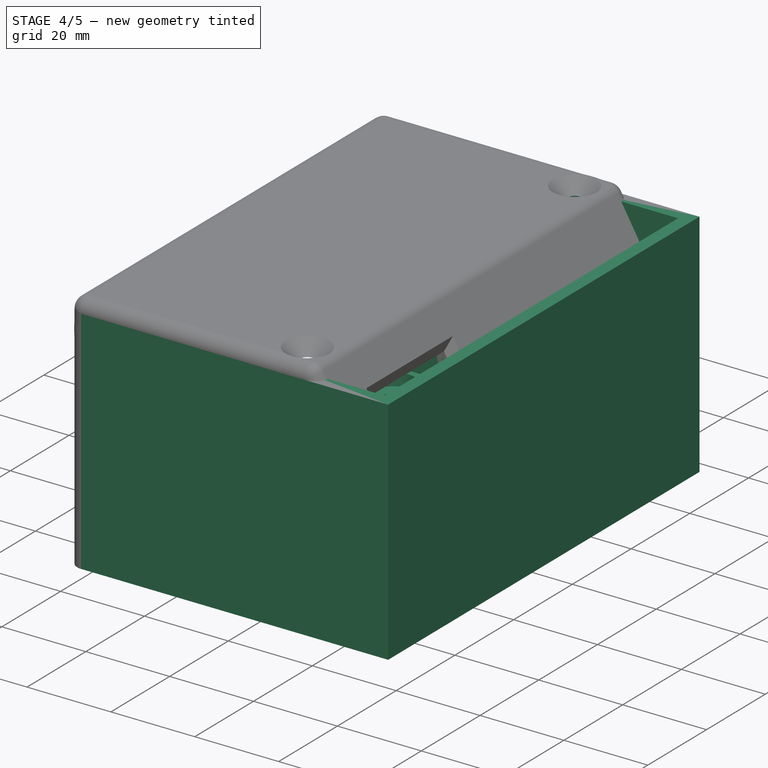
[diagram: stage 4 of 5 — iso view after this stage's code; geometry added in this stage tinted green]
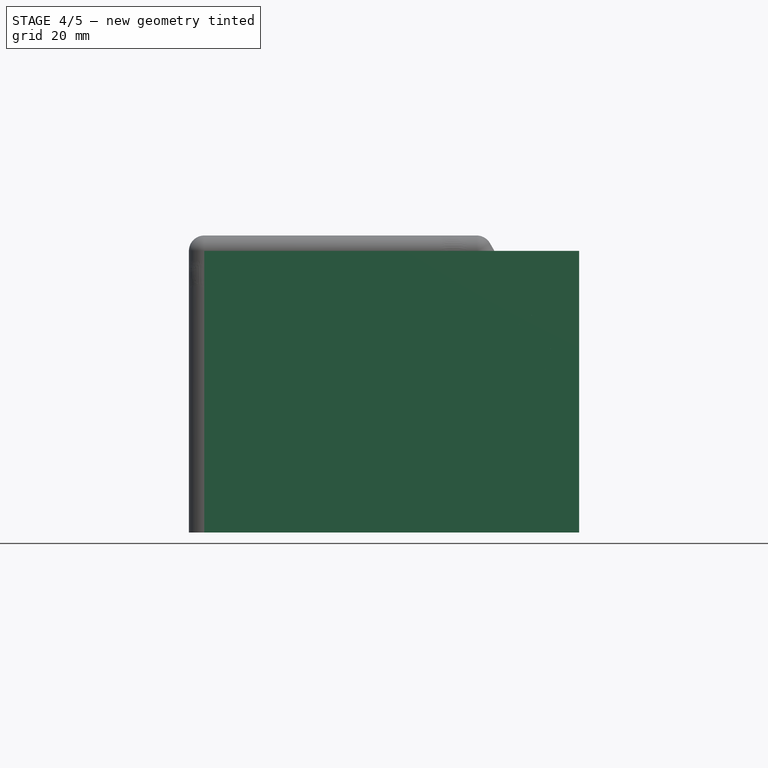
[diagram: stage 4 of 5 — front view after this stage's code; geometry added in this stage tinted green]
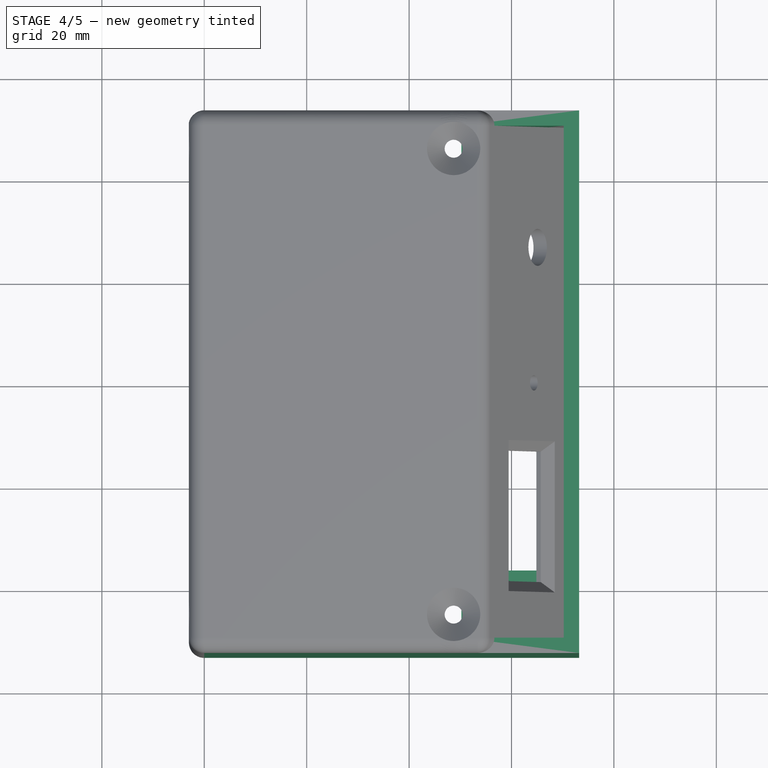
[diagram: stage 4 of 5 — top view after this stage's code; geometry added in this stage tinted green]
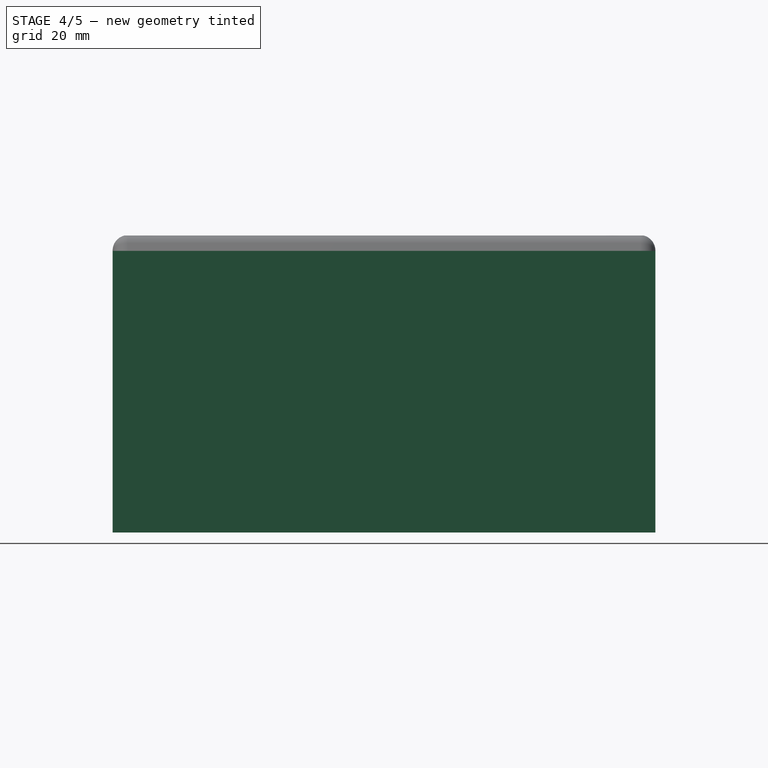
[diagram: stage 4 of 5 — right view after this stage's code; geometry added in this stage tinted green]
FEATURE [Sketcher::SketchObject] Sketch
  FullyConstrained = true
  MapMode = 5
  Placement = pos=(0,0,0) rot=(1,0,0;1.5708rad)
  Support = -> [XZ_Plane001]
  expr: Constraints[10] = <<Spreadsheet>>.width
  expr: Constraints[11] = Spreadsheet.height
  sketch-geometry (4):
    g0: LineSegment StartX=0 StartY=55 StartZ=0 EndX=73.2 EndY=55 EndZ=0
    g1: LineSegment StartX=73.2 StartY=55 StartZ=0 EndX=73.2 EndY=0 EndZ=0
    g2: LineSegment StartX=73.2 StartY=0 StartZ=0 EndX=0 EndY=0 EndZ=0
    g3: LineSegment StartX=0 StartY=0 StartZ=0 EndX=0 EndY=55 EndZ=0
  constraints (12):
    c: Coincident(g0,g1)
    c: Coincident(g1,g2)
    c: Coincident(g2,g3)
    c: Coincident(g3,g0)
    c: Horizontal(g0)
    c: Horizontal(g2)
    c: Vertical(g1)
    c: Vertical(g3)
    c: PointOnObject(g0,g-2)
    c: PointOnObject(g1,g-1)
    c: Distance(g0) = 73.2
    c: Distance(g1) = 55
FEATURE [PartDesign::Pad] Pad
  Direction = (1,1,1)
  Length = 106
  Length2 = 100
  Midplane = true
  Placement = pos=(0,0,0) rot=(1,0,0;1.5708rad)
  Profile = -> Sketch
  Type = 0
  expr: Length = <<Spreadsheet>>.PCB_length + <<Spreadsheet>>.wall_thickness * 2
FEATURE [Spreadsheet::Sheet] Spreadsheet
  cells = A1=length; B1(length)==B7 + B4 * 2; A2=width ; B2(width)==B8 + B9 + B4; A3=height ; B3(height)=55; A4=wall_thickness; B4(wall_thickness)=3; A5=mount_height; B5(mount_height)=5; A7=PCB_length; B7(PCB_length)=100; A8=PCB_width; B8(PCB_width)=50.2; A9=wire_gap; B9(wire_gap)=20
FEATURE [Sketcher::SketchObject] Sketch001
  FullyConstrained = true
  MapMode = 5
  Support = -> [XY_Plane001]
  expr: Constraints[31] = Spreadsheet.PCB_length
  expr: Constraints[32] = <<Spreadsheet>>.width - <<Spreadsheet>>.wall_thickness - 5
  sketch-geometry (20):
    g0: LineSegment StartX=5 StartY=36 StartZ=0 EndX=7 EndY=36 EndZ=0
    g1: LineSegment StartX=14 StartY=43 StartZ=0 EndX=14 EndY=50 EndZ=0
    g2: LineSegment StartX=14 StartY=50 StartZ=0 EndX=50.2 EndY=50 EndZ=0
    g3: LineSegment StartX=50.2 StartY=50 StartZ=0 EndX=50.2 EndY=43 EndZ=0
    g4: LineSegment StartX=57.2 StartY=36 StartZ=0 EndX=70.2 EndY=36 EndZ=0
    g5: LineSegment StartX=70.2 StartY=36 StartZ=0 EndX=70.2 EndY=-36 EndZ=0
    g6: LineSegment StartX=70.2 StartY=-36 StartZ=0 EndX=57.2 EndY=-36 EndZ=0
    g7: LineSegment StartX=50.2 StartY=-43 StartZ=0 EndX=50.2 EndY=-50 EndZ=0
    g8: LineSegment StartX=50.2 StartY=-50 StartZ=0 EndX=14 EndY=-50 EndZ=0
    g9: LineSegment StartX=14 StartY=-50 StartZ=0 EndX=14 EndY=-43 EndZ=0
    g10: LineSegment StartX=7 StartY=-36 StartZ=0 EndX=5 EndY=-36 EndZ=0
    g11: LineSegment StartX=5 StartY=-36 StartZ=0 EndX=5 EndY=36 EndZ=0
    g12: ArcOfCircle CenterX=7 CenterY=43 CenterZ=0 NormalX=0 NormalY=0 NormalZ=1 AngleXU=0 Radius=7 StartAngle=4.71239 EndAngle=6.28319
    g13: ArcOfCircle CenterX=7 CenterY=-43 CenterZ=0 NormalX=0 NormalY=0 NormalZ=1 AngleXU=0 Radius=7 StartAngle=0 EndAngle=1.5708
    g14: ArcOfCircle CenterX=57.2 CenterY=-43 CenterZ=0 NormalX=0 NormalY=0 NormalZ=1 AngleXU=0 Radius=7 StartAngle=1.5708 EndAngle=3.14159
    g15: ArcOfCircle CenterX=57.2 CenterY=43 CenterZ=0 NormalX=0 NormalY=0 NormalZ=1 AngleXU=0 Radius=7 StartAngle=3.14159 EndAngle=4.71239
    g16: Circle CenterX=7 CenterY=43 CenterZ=0 NormalX=0 NormalY=0 NormalZ=1 AngleXU=0 Radius=2.25
    g17: Circle CenterX=57.2 CenterY=43 CenterZ=0 NormalX=0 NormalY=0 NormalZ=1 AngleXU=0 Radius=2.25
    g18: Circle CenterX=57.2 CenterY=-43 CenterZ=0 NormalX=0 NormalY=0 NormalZ=1 AngleXU=0 Radius=2.25
    g19: Circle CenterX=7 CenterY=-43 CenterZ=0 NormalX=0 NormalY=0 NormalZ=1 AngleXU=0 Radius=2.25
  constraints (49):
    c: Horizontal(g0)
    c: Coincident(g1,g2)
    c: Horizontal(g2)
    c: Coincident(g2,g3)
    c: Vertical(g3)
    c: Coincident(g4,g5)
    c: Coincident(g5,g6)
    c: Horizontal(g6)
    c: Coincident(g7,g8)
    c: Horizontal(g8)
    c: Coincident(g8,g9)
    c: Vertical(g9)
    c: Horizontal(g10)
    c: Coincident(g10,g11)
    c: Coincident(g11,g0)
    c: Vertical(g1)
    c: Equal(g11,g5)
    c: Symmetric(g2,g7,g-1)
    c: Tangent(g0,g12) = -1.5708
    c: Tangent(g1,g12) = -1.5708
    c: Tangent(g9,g13) = -1.5708
    c: Tangent(g10,g13) = -1.5708
    c: Tangent(g6,g14) = -1.5708
    c: Tangent(g7,g14) = -1.5708
    c: Tangent(g3,g15) = -1.5708
    c: Tangent(g4,g15) = -1.5708
    c: Symmetric(g0,g10,g-1)
    c: Symmetric(g4,g5,g-1)
    c: Equal(g12,g15)
    c: Equal(g15,g14)
    c: Vertical(g7)
    c: Distance(g8,g2) = 100
    c: Distance(g4,g11) = 65.2
    c: Coincident(g16,g12)
    c: Coincident(g17,g15)
    c: Coincident(g18,g14)
    c: Coincident(g19,g13)
    c: Equal(g16,g17)
    c: Equal(g17,g18)
    c: Equal(g18,g19)
    c: Diameter(g17) = 4.5
    c: Radius(g12) = 7
    c: Distance(g1) = 7
    c: Equal(g1,g3)
    c: Equal(g0,g10)
    c: Distance(g4) = 13
    c: Distance(g0) = 2
    c: Equal(g9,g7)
    c: DistanceX(g-2,g0) = 5
FEATURE [PartDesign::Pocket] Pocket
  BaseFeature = -> Pad
  Length = 5
  Length2 = 100
  Placement = pos=(0,0,0) rot=(1,0,0;1.5708rad)
  Profile = -> Sketch001
  Reversed = true
  Type = 1
FEATURE [Sketcher::SketchObject] Sketch002
  AttachmentOffset = pos=(0,0,5) rot=(0,0,1;0rad)
  FullyConstrained = true
  MapMode = 5
  Placement = pos=(0,0,5) rot=(0,0,1;0rad)
  Support = -> [XY_Plane001]
  expr: Constraints[8] = <<Spreadsheet>>.PCB_length
  expr: Constraints[9] = <<Spreadsheet>>.width - Spreadsheet.wall_thickness
  expr: .AttachmentOffset.Base.z = Spreadsheet.mount_height
  sketch-geometry (4):
    g0: LineSegment StartX=0 StartY=50 StartZ=0 EndX=70.2 EndY=50 EndZ=0
    g1: LineSegment StartX=70.2 StartY=50 StartZ=0 EndX=70.2 EndY=-50 EndZ=0
    g2: LineSegment StartX=70.2 StartY=-50 StartZ=0 EndX=0 EndY=-50 EndZ=0
    g3: LineSegment StartX=0 StartY=-50 StartZ=0 EndX=0 EndY=50 EndZ=0
  constraints (11):
    c: Coincident(g0,g1)
    c: Coincident(g1,g2)
    c: Coincident(g2,g3)
    c: Coincident(g3,g0)
    c: Horizontal(g0)
    c: Horizontal(g2)
    c: Vertical(g3)
    c: PointOnObject(g0,g-2)
    c: Distance(g3) = 100
    c: Distance(g2) = 70.2
    c: Symmetric(g0,g1,g-1)
FEATURE [PartDesign::Pocket] Pocket001
  BaseFeature = -> Pocket
  Length = 5
  Length2 = 100
  Placement = pos=(0,0,0) rot=(1,0,0;1.5708rad)
  Profile = -> Sketch002
  Reversed = true
  Type = 1
FEATURE [Sketcher::SketchObject] Sketch003
  FullyConstrained = false
  MapMode = 5
  Placement = pos=(0,0,0) rot=(1,0,0;1.5708rad)
  Support = -> [XZ_Plane001]
  expr: Constraints[17] = Spreadsheet.wall_thickness
  expr: Constraints[9] = <<Spreadsheet>>.width
  expr: Constraints[10] = Spreadsheet.height
  sketch-geometry (10):
    g0: LineSegment StartX=0 StartY=55 StartZ=0 EndX=53.2 EndY=55 EndZ=0
    g1: LineSegment StartX=73.2 StartY=20.3547 StartZ=0 EndX=73.2 EndY=0 EndZ=0
    g2: LineSegment StartX=73.2 StartY=0 StartZ=0 EndX=0 EndY=0 EndZ=0
    g3: LineSegment StartX=0 StartY=0 StartZ=0 EndX=0 EndY=55 EndZ=0
    g4: LineSegment StartX=53.2 StartY=55 StartZ=0 EndX=73.2 EndY=55 EndZ=0
    g5: LineSegment StartX=73.2 StartY=25.5551 StartZ=0 EndX=73.2 EndY=55 EndZ=0
    g6: LineSegment StartX=70.2 StartY=71.1947 StartZ=0 EndX=70.2 EndY=11.4438 EndZ=0
    g7: LineSegment StartX=53.2 StartY=55 StartZ=0 EndX=70.2 EndY=25.5551 EndZ=0
    g8: LineSegment StartX=53.2 StartY=55 StartZ=0 EndX=73.2 EndY=20.359 EndZ=0
    g9: LineSegment StartX=70.2 StartY=25.5551 StartZ=0 EndX=73.2 EndY=25.5551 EndZ=0
  constraints (30):
    c: Coincident(g1,g2)
    c: Coincident(g2,g3)
    c: Coincident(g3,g0)
    c: Horizontal(g0)
    c: Horizontal(g2)
    c: Vertical(g1)
    c: Vertical(g3)
    c: PointOnObject(g0,g-2)
    c: PointOnObject(g1,g-1)
    c: Distance(g2) = 73.2
    c: Distance(g3) = 55
    c: Horizontal(g4)
    c: Coincident(g5,g4)
    c: Vertical(g5)
    c: DistanceX(g-2,g0) = 53.2  'top_flat'
    c: Distance(g1) = 20.3547
    c: Vertical(g6)
    c: Distance(g6,g1) = 3
    c: Coincident(g7,g4)
    c: PointOnObject(g7,g6)
    c: Angle(g7,g-1) = 1.0472
    c: Coincident(g8,g4)
    c: PointOnObject(g8,g5)
    c: Distance(g8) = 40
    c: PointOnObject(g8,g1)
    c: PointOnObject(g7,g8)
    c: Coincident(g9,g7)
    c: Coincident(g9,g5)
    c: Horizontal(g9)
    c: Coincident(g0,g4)
FEATURE [Sketcher::SketchObject] Sketch004
  AttachmentOffset = pos=(0,0,5) rot=(0,0,1;0rad)
  ExternalGeometry = -> [Sketch001]
  FullyConstrained = true
  MapMode = 5
  Placement = pos=(0,0,5) rot=(0,0,1;0rad)
  Support = -> [XY_Plane001]
  expr: .AttachmentOffset.Base.z = Spreadsheet.mount_height
  sketch-geometry (4):
    g0: Circle CenterX=57.2 CenterY=43 CenterZ=0 NormalX=0 NormalY=0 NormalZ=1 AngleXU=0 Radius=5.5
    g1: Circle CenterX=7 CenterY=-43 CenterZ=0 NormalX=0 NormalY=0 NormalZ=1 AngleXU=0 Radius=5.5
    g2: Circle CenterX=57.2 CenterY=-43 CenterZ=0 NormalX=0 NormalY=0 NormalZ=1 AngleXU=0 Radius=5.5
    g3: Circle CenterX=7 CenterY=43 CenterZ=0 NormalX=0 NormalY=0 NormalZ=1 AngleXU=0 Radius=5.5
  constraints (8):
    c: Equal(g1,g0)
    c: Equal(g0,g3)
    c: Equal(g3,g2)
    c: Diameter(g1) = 11
    c: Coincident(g1,g-6)
    c: Coincident(g2,g-5)
    c: Coincident(g3,g-3)
    c: Coincident(g0,g-4)
FEATURE [PartDesign::Pocket] Pocket003
  BaseFeature = -> Pocket001
  Length = 3
  Length2 = 100
  Placement = pos=(0,0,0) rot=(1,0,0;1.5708rad)
  Profile = -> Sketch004
  Type = 0
FEATURE [Sketcher::SketchObject] Sketch005
  FullyConstrained = true
  MapMode = 5
  Support = -> [XY_Plane001]
  expr: Constraints[10] = <<Spreadsheet>>.wire_gap
  expr: Constraints[9] = <<Spreadsheet>>.PCB_width
  expr: Constraints[7] = <<Spreadsheet>>.PCB_length
  sketch-geometry (24):
    g0: LineSegment StartX=20 StartY=50 StartZ=0 EndX=70.2 EndY=50 EndZ=0
    g1: LineSegment StartX=70.2 StartY=50 StartZ=0 EndX=70.2 EndY=-50 EndZ=0
    g2: LineSegment StartX=70.2 StartY=-50 StartZ=0 EndX=20 EndY=-50 EndZ=0
    g3: LineSegment StartX=20 StartY=-50 StartZ=0 EndX=20 EndY=50 EndZ=0
    g4: LineSegment StartX=70.2 StartY=50 StartZ=0 EndX=63 EndY=50 EndZ=0
    g5: LineSegment StartX=63 StartY=50 StartZ=0 EndX=63 EndY=42.8 EndZ=0
    g6: LineSegment StartX=63 StartY=42.8 StartZ=0 EndX=70.2 EndY=42.8 EndZ=0
    g7: LineSegment StartX=70.2 StartY=42.8 StartZ=0 EndX=70.2 EndY=50 EndZ=0
    g8: LineSegment StartX=20 StartY=50 StartZ=0 EndX=27.2 EndY=50 EndZ=0
    g9: LineSegment StartX=27.2 StartY=50 StartZ=0 EndX=27.2 EndY=42.8 EndZ=0
    g10: LineSegment StartX=27.2 StartY=42.8 StartZ=0 EndX=20 EndY=42.8 EndZ=0
    g11: LineSegment StartX=20 StartY=42.8 StartZ=0 EndX=20 EndY=50 EndZ=0
    g12: LineSegment StartX=20 StartY=-50 StartZ=0 EndX=27.2 EndY=-50 EndZ=0
    g13: LineSegment StartX=27.2 StartY=-50 StartZ=0 EndX=27.2 EndY=-42.8 EndZ=0
    g14: LineSegment StartX=27.2 StartY=-42.8 StartZ=0 EndX=20 EndY=-42.8 EndZ=0
    g15: LineSegment StartX=20 StartY=-42.8 StartZ=0 EndX=20 EndY=-50 EndZ=0
    g16: LineSegment StartX=70.2 StartY=-50 StartZ=0 EndX=63 EndY=-50 EndZ=0
    g17: LineSegment StartX=63 StartY=-50 StartZ=0 EndX=63 EndY=-42.8 EndZ=0
    g18: LineSegment StartX=63 StartY=-42.8 StartZ=0 EndX=70.2 EndY=-42.8 EndZ=0
    g19: LineSegment StartX=70.2 StartY=-42.8 StartZ=0 EndX=70.2 EndY=-50 EndZ=0
    g20: Circle CenterX=23.6 CenterY=46.4 CenterZ=0 NormalX=0 NormalY=0 NormalZ=1 AngleXU=0 Radius=1.5
    g21: Circle CenterX=66.6 CenterY=46.4 CenterZ=0 NormalX=0 NormalY=0 NormalZ=1 AngleXU=0 Radius=1.5
    g22: Circle CenterX=66.6 CenterY=-46.4 CenterZ=0 NormalX=0 NormalY=0 NormalZ=1 AngleXU=0 Radius=1.5
    g23: Circle CenterX=23.6 CenterY=-46.4 CenterZ=0 NormalX=0 NormalY=0 NormalZ=1 AngleXU=0 Radius=1.5
  constraints (64):
    c: Coincident(g0,g1)
    c: Coincident(g1,g2)
    c: Coincident(g2,g3)
    c: Coincident(g3,g0)
    c: Horizontal(g0)
    c: Horizontal(g2)
    c: Vertical(g3)
    c: Distance(g1) = 100
    c: Symmetric(g0,g1,g-1)
    c: Distance(g0) = 50.2
    c: DistanceX(g-2,g0) = 20
    c: Coincident(g4,g5)
    c: Coincident(g5,g6)
    c: Coincident(g6,g7)
    c: Coincident(g7,g4)
    c: Horizontal(g4)
    c: Horizontal(g6)
    c: Vertical(g5)
    c: Vertical(g7)
    c: Coincident(g4,g0)
    c: Coincident(g8,g9)
    c: Coincident(g9,g10)
    c: Coincident(g10,g11)
    c: Coincident(g11,g8)
    c: Horizontal(g8)
    c: Horizontal(g10)
    c: Vertical(g9)
    c: Vertical(g11)
    c: Coincident(g8,g0)
    c: Coincident(g12,g13)
    c: Coincident(g13,g14)
    c: Coincident(g14,g15)
    c: Coincident(g15,g12)
    c: Horizontal(g12)
    c: Horizontal(g14)
    c: Vertical(g13)
    c: Vertical(g15)
    c: Coincident(g12,g2)
    c: Coincident(g16,g17)
    c: Coincident(g17,g18)
    c: Coincident(g18,g19)
    c: Coincident(g19,g16)
    c: Horizontal(g16)
    c: Horizontal(g18)
    c: Vertical(g17)
    c: Vertical(g19)
    c: Coincident(g16,g1)
    c: Equal(g10,g9)
    c: Equal(g9,g5)
    c: Equal(g5,g6)
    c: Equal(g6,g18)
    c: Equal(g18,g14)
    c: Equal(g14,g13)
    c: Equal(g13,g17)
    c: Distance(g7) = 7.2
    c: Symmetric(g16,g18,g22)
    c: Symmetric(g12,g13,g23)
    c: Symmetric(g5,g4,g21)
    c: Symmetric(g10,g8,g20)
    c: Diameter(g21) = 3
    c: Equal(g23,g22)
    c: Equal(g22,g20)
    c: Equal(g20,g21)
    c: Distance(g21,g0) = 3.6
FEATURE [PartDesign::Pad] Pad001
  BaseFeature = -> Pocket003
  Direction = (1,1,1)
  Length = 9
  Length2 = 100
  Placement = pos=(0,0,0) rot=(1,0,0;1.5708rad)
  Profile = -> Sketch005
  Type = 0
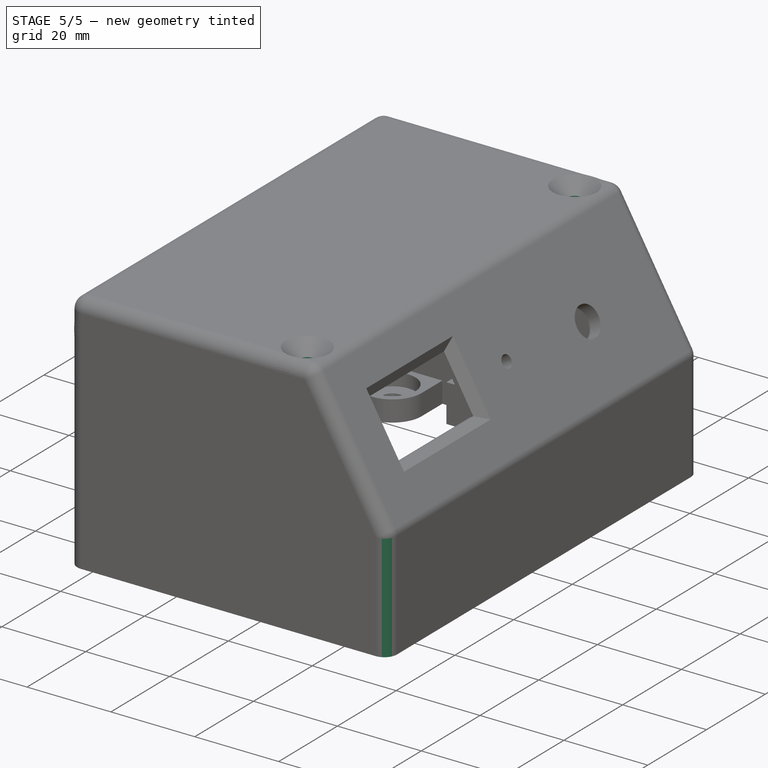
[diagram: stage 5 of 5 — iso view after this stage's code; geometry added in this stage tinted green]
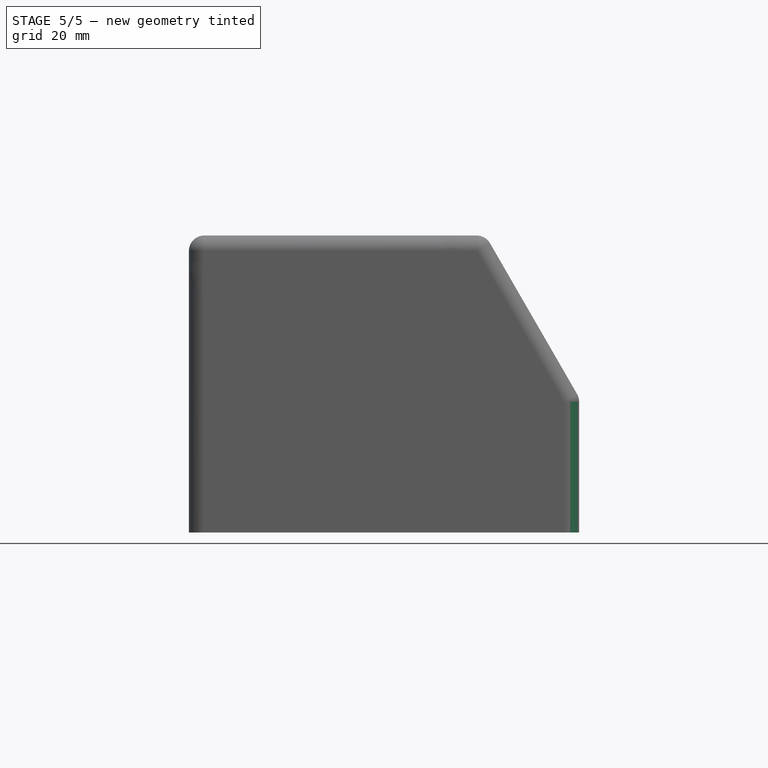
[diagram: stage 5 of 5 — front view after this stage's code; geometry added in this stage tinted green]
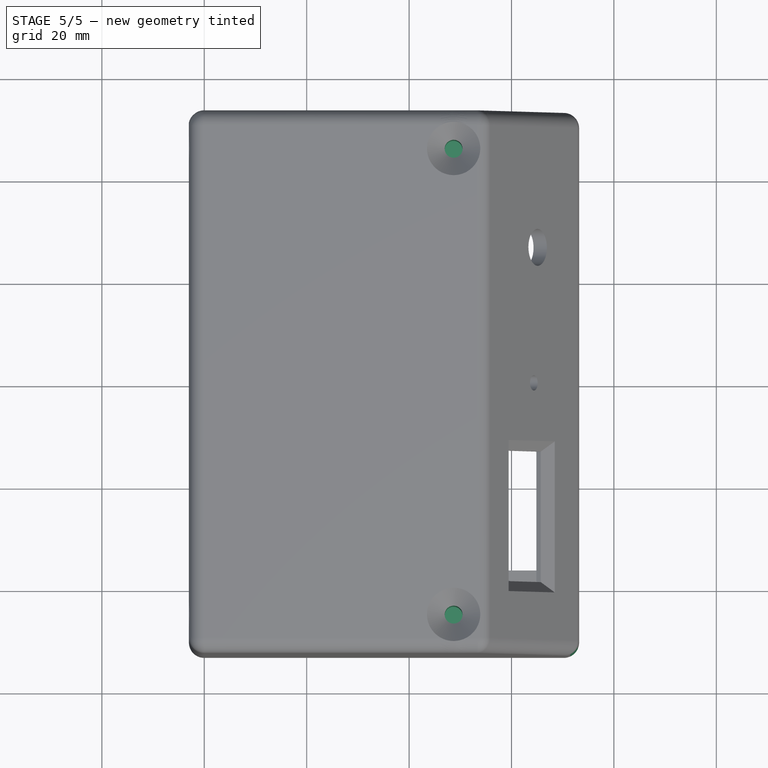
[diagram: stage 5 of 5 — top view after this stage's code; geometry added in this stage tinted green]
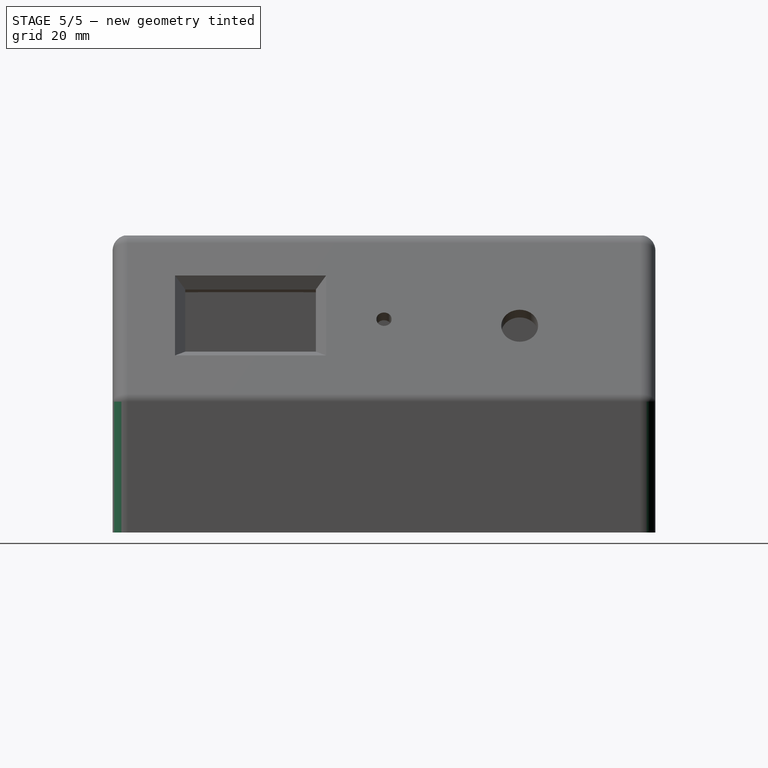
[diagram: stage 5 of 5 — right view after this stage's code; geometry added in this stage tinted green]
FEATURE [Sketcher::SketchObject] Sketch006
  AttachmentOffset = pos=(0,0,10) rot=(0,0,1;0rad)
  FullyConstrained = true
  MapMode = 5
  Placement = pos=(10,-2.2e-15,2.2e-15) rot=(0.57735,0.57735,0.57735;2.0944rad)
  Support = -> [YZ_Plane001]
  expr: Constraints[22] = <<Spreadsheet>>.height
  expr: Constraints[18] = <<Spreadsheet>>.PCB_length
  sketch-geometry (10):
    g0: LineSegment StartX=-50 StartY=55 StartZ=0 EndX=-41 EndY=55 EndZ=0
    g1: LineSegment StartX=-41 StartY=55 StartZ=0 EndX=-41 EndY=46 EndZ=0
    g2: LineSegment StartX=-50 StartY=30.4115 StartZ=0 EndX=-50 EndY=55 EndZ=0
    g3: LineSegment StartX=41 StartY=55 StartZ=0 EndX=50 EndY=55 EndZ=0
    g4: LineSegment StartX=50 StartY=55 StartZ=0 EndX=50 EndY=30.4115 EndZ=0
    g5: LineSegment StartX=41 StartY=46 StartZ=0 EndX=41 EndY=55 EndZ=0
    g6: LineSegment StartX=-41 StartY=46 StartZ=0 EndX=-50 EndY=30.4115 EndZ=0
    g7: LineSegment StartX=41 StartY=46 StartZ=0 EndX=50 EndY=30.4115 EndZ=0
    g8: Circle CenterX=-45.5 CenterY=50.5 CenterZ=0 NormalX=0 NormalY=0 NormalZ=1 AngleXU=0 Radius=1.75
    g9: Circle CenterX=45.5 CenterY=50.5 CenterZ=0 NormalX=0 NormalY=0 NormalZ=1 AngleXU=0 Radius=1.75
  constraints (31):
    c: Coincident(g0,g1)
    c: Coincident(g2,g0)
    c: Horizontal(g0)
    c: Vertical(g1)
    c: Vertical(g2)
    c: Coincident(g3,g4)
    c: Coincident(g5,g3)
    c: Horizontal(g3)
    c: Vertical(g4)
    c: Vertical(g5)
    c: Coincident(g6,g1)
    c: Coincident(g6,g2)
    c: Coincident(g7,g5)
    c: Coincident(g7,g4)
    c: Angle(g6,g-2) = 0.523599
    c: Angle(g-2,g7) = 0.523599
    c: Equal(g0,g3)
    c: Distance(g3) = 9  'A'
    c: Distance(g0,g3) = 100
    c: Symmetric(g0,g3,g-2)
    c: Equal(g3,g5)
    c: Equal(g5,g1)
    c: DistanceY(g-1,g0) = 55
    c: Distance(g8,g1) = 4.5
    c: Distance(g8,g0) = 4.5
    c: Distance(g9,g3) = 4.5
    c: Distance(g9,g5) = 4.5
    c: Equal(g9,g8)
    c: Diameter(g9) = 3.5
    c: DistanceX(g-2,g9) = 45.5
    c: DistanceY(g-1,g9) = 50.5
FEATURE [PartDesign::Pad] Pad002
  BaseFeature = -> Pad001
  Direction = (1,1,1)
  Length = 10
  Length2 = 100
  Placement = pos=(0,0,0) rot=(1,0,0;1.5708rad)
  Profile = -> Sketch006
  Type = 0
FEATURE [PartDesign::Pocket] Pocket004
  BaseFeature = -> Pad002
  Length = 5
  Length2 = 100
  Midplane = true
  Placement = pos=(0,0,0) rot=(1,0,0;1.5708rad)
  Profile = -> Sketch003
  Type = 1
FEATURE [Sketcher::SketchObject] Sketch007
  AttachmentOffset = pos=(0,0,53.2) rot=(0,0,1;0rad)
  FullyConstrained = true
  MapMode = 5
  Placement = pos=(53.2,-1.18e-14,1.18e-14) rot=(0.57735,0.57735,0.57735;2.0944rad)
  Support = -> [YZ_Plane001]
  expr: Constraints[21] = <<Spreadsheet>>.PCB_length
  expr: Constraints[20] = <<Spreadsheet>>.height
  sketch-geometry (8):
    g0: LineSegment StartX=-50 StartY=55 StartZ=0 EndX=-41 EndY=55 EndZ=0
    g1: LineSegment StartX=-41 StartY=55 StartZ=0 EndX=-41 EndY=45 EndZ=0
    g2: LineSegment StartX=-41 StartY=45 StartZ=0 EndX=-50 EndY=29.4115 EndZ=0
    g3: LineSegment StartX=-50 StartY=29.4115 StartZ=0 EndX=-50 EndY=55 EndZ=0
    g4: LineSegment StartX=41 StartY=55 StartZ=0 EndX=50 EndY=55 EndZ=0
    g5: LineSegment StartX=50 StartY=55 StartZ=0 EndX=50 EndY=29.4115 EndZ=0
    g6: LineSegment StartX=50 StartY=29.4115 StartZ=0 EndX=41 EndY=45 EndZ=0
    g7: LineSegment StartX=41 StartY=45 StartZ=0 EndX=41 EndY=55 EndZ=0
  constraints (22):
    c: Coincident(g0,g1)
    c: Coincident(g1,g2)
    c: Coincident(g2,g3)
    c: Coincident(g3,g0)
    c: Horizontal(g0)
    c: Vertical(g1)
    c: Vertical(g3)
    c: Coincident(g4,g5)
    c: Coincident(g5,g6)
    c: Coincident(g6,g7)
    c: Coincident(g7,g4)
    c: Horizontal(g4)
    c: Vertical(g7)
    c: Symmetric(g0,g4,g-2)
    c: Equal(g0,g4)
    c: Angle(g2,g-2) = 0.523599
    c: Symmetric(g5,g2,g-2)
    c: Distance(g4) = 9
    c: Distance(g1) = 10
    c: Equal(g7,g1)
    c: DistanceY(g-1,g0) = 55
    c: Distance(g0,g4) = 100
FEATURE [PartDesign::Pad] Pad003
  BaseFeature = -> Pocket004
  Direction = (1,1,1)
  Length = 9
  Length2 = 100
  Placement = pos=(0,0,0) rot=(1,0,0;1.5708rad)
  Profile = -> Sketch007
  Reversed = true
  Type = 0
FEATURE [Sketcher::SketchObject] Sketch008
  AttachmentOffset = pos=(0,0,55) rot=(0,0,1;0rad)
  ExternalGeometry = -> [Pad003]
  FullyConstrained = true
  MapMode = 5
  Placement = pos=(0,0,55) rot=(0,0,1;0rad)
  Support = -> [XY_Plane001]
  expr: .AttachmentOffset.Base.z = Spreadsheet.height
  sketch-geometry (2):
    g0: Circle CenterX=48.7 CenterY=45.5 CenterZ=0 NormalX=0 NormalY=0 NormalZ=1 AngleXU=0 Radius=1.75
    g1: Circle CenterX=48.7 CenterY=-45.5 CenterZ=0 NormalX=0 NormalY=0 NormalZ=1 AngleXU=0 Radius=1.75
  constraints (6):
    c: Equal(g1,g0)
    c: Diameter(g0) = 3.5
    c: Symmetric(g-6,g-5,g1)
    c: Symmetric(g-4,g-3,g0)
    c: DistanceY(g-1,g0) = 45.5
    c: DistanceX(g-2,g0) = 48.7
FEATURE [PartDesign::Pocket] Pocket005
  BaseFeature = -> Pad003
  Length = 12
  Length2 = 100
  Placement = pos=(0,0,0) rot=(1,0,0;1.5708rad)
  Profile = -> Sketch008
  Type = 0
FEATURE [PartDesign::Fillet] Fillet  label="Base001"
  Base = -> Pocket005 [Edge78,Edge12]
  BaseFeature = -> Pocket005
  Placement = pos=(0,0,0) rot=(1,0,0;1.5708rad)
  Radius = 3
  SupportTransform = false
  expr: Radius = Spreadsheet.wall_thickness
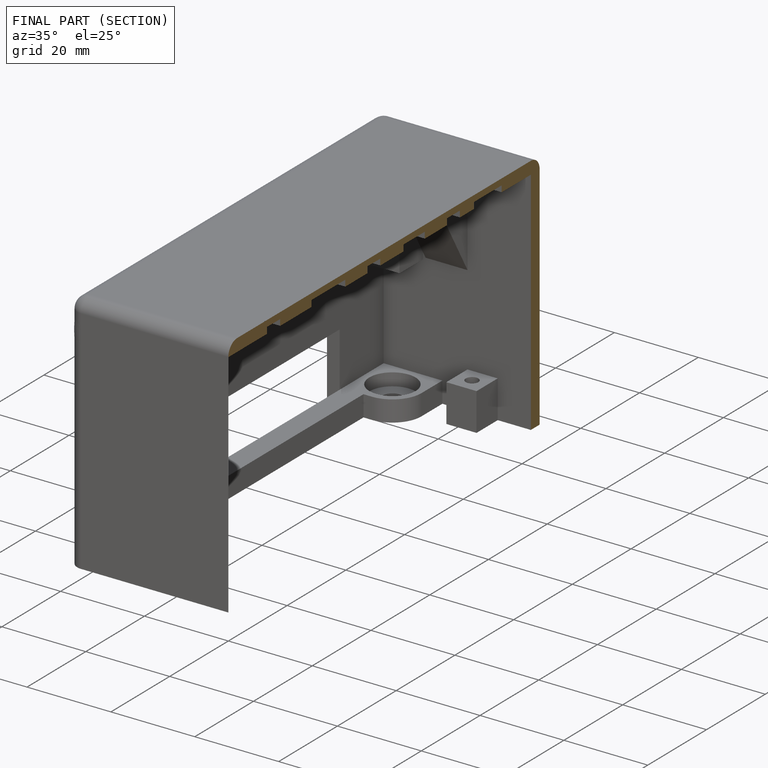
[diagram: finished part — half-section view (interior)]
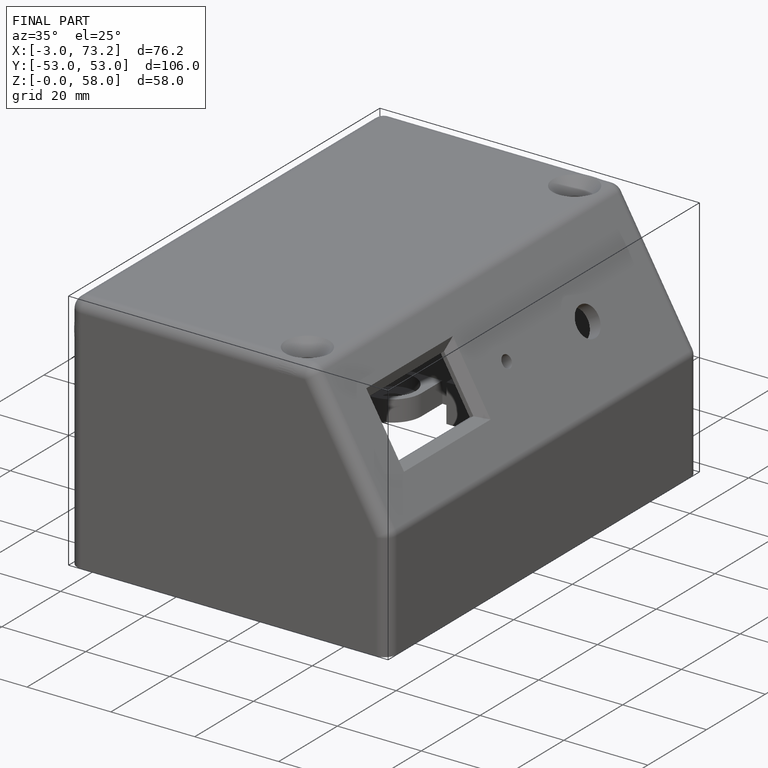
[diagram: finished part — iso view with bounding-box wireframe]
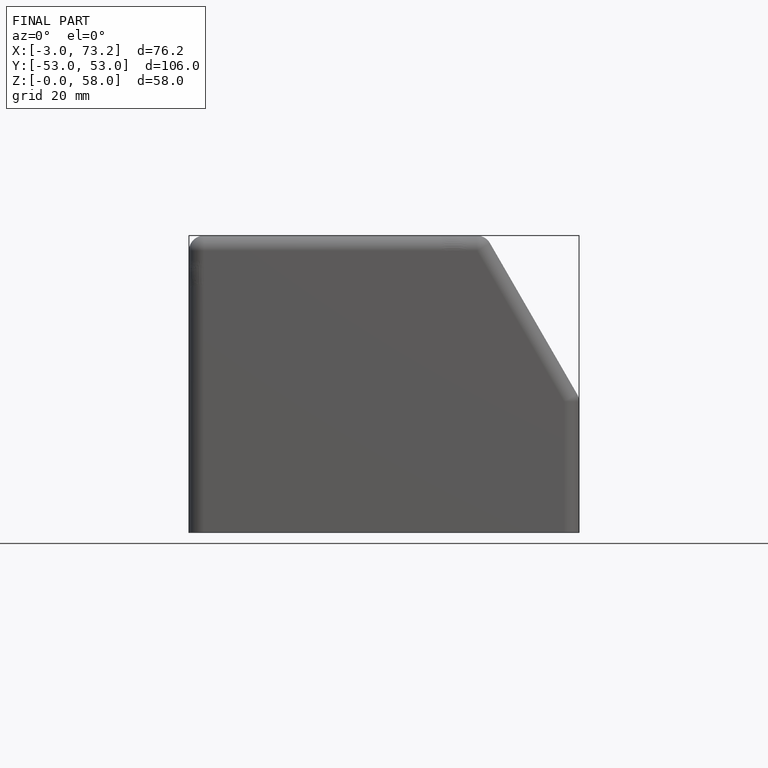
[diagram: finished part — front view with bounding-box wireframe]
